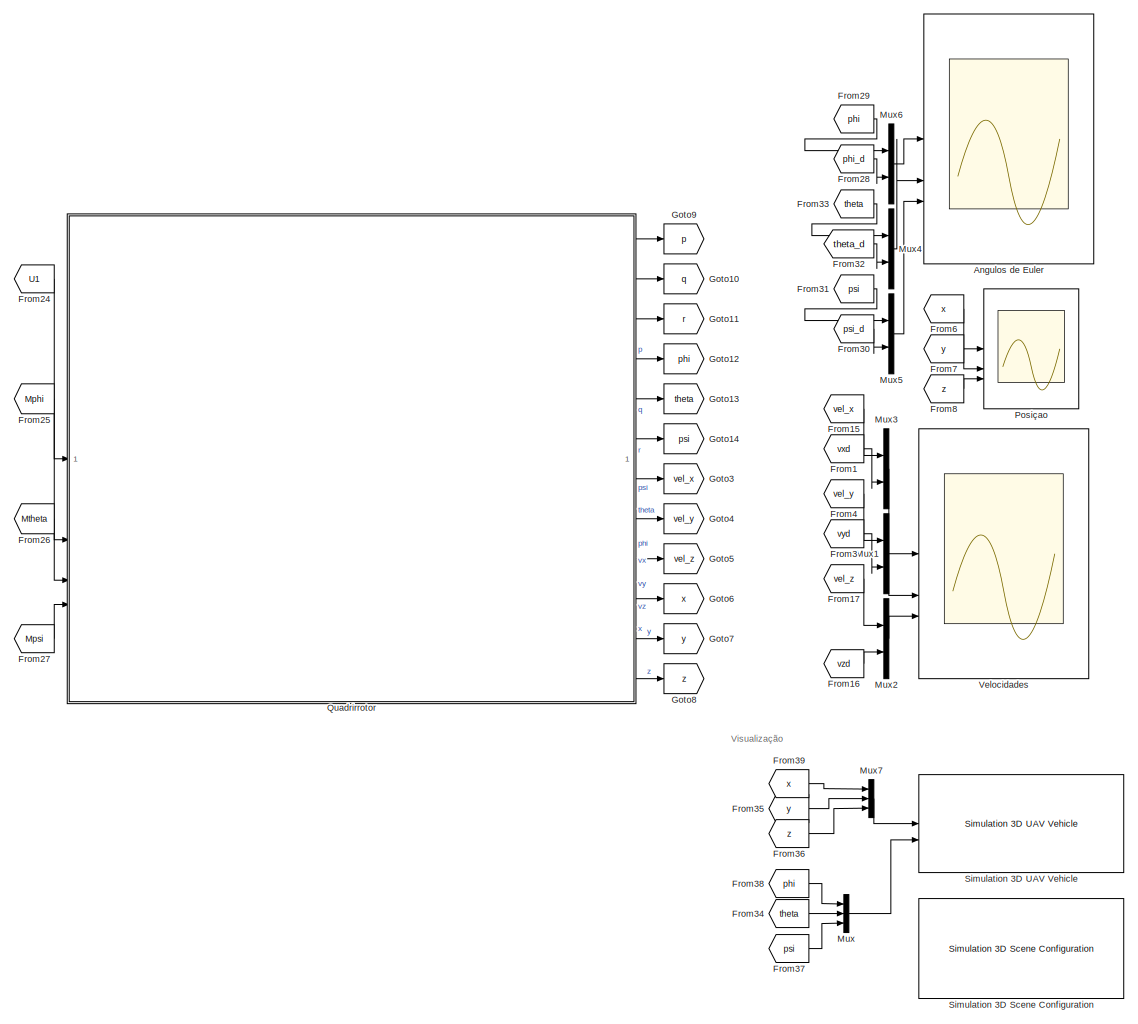
[diagram: root canvas - part 1/2, right side, full height]
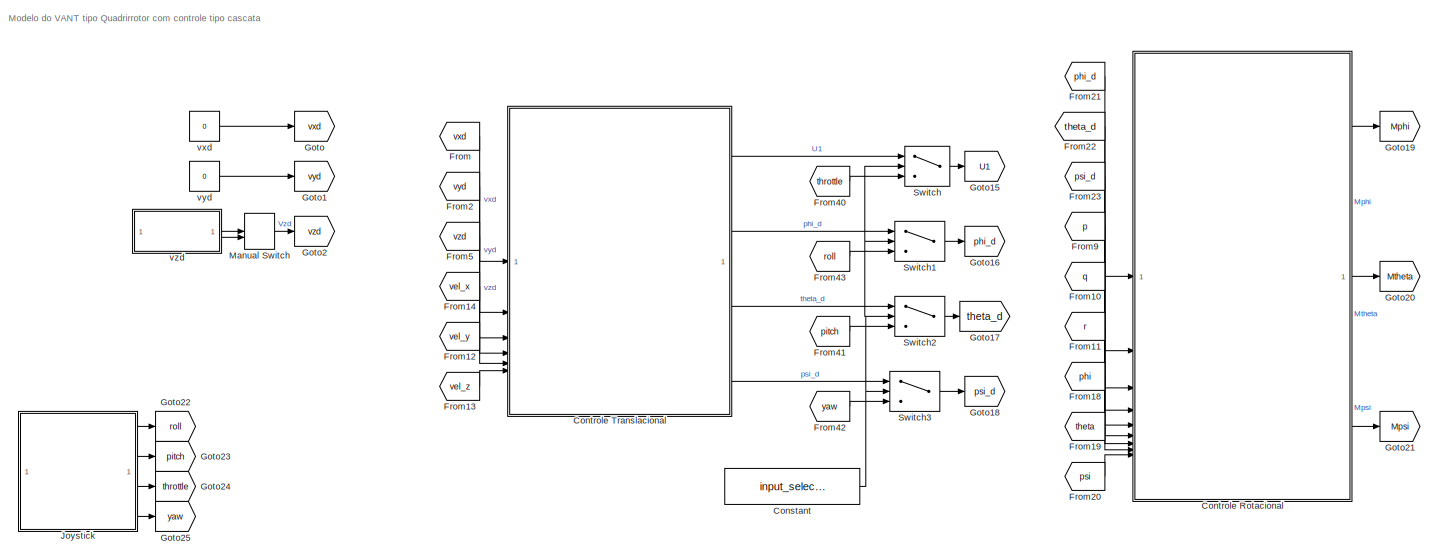
[diagram: root canvas - part 2/2, middle left region]
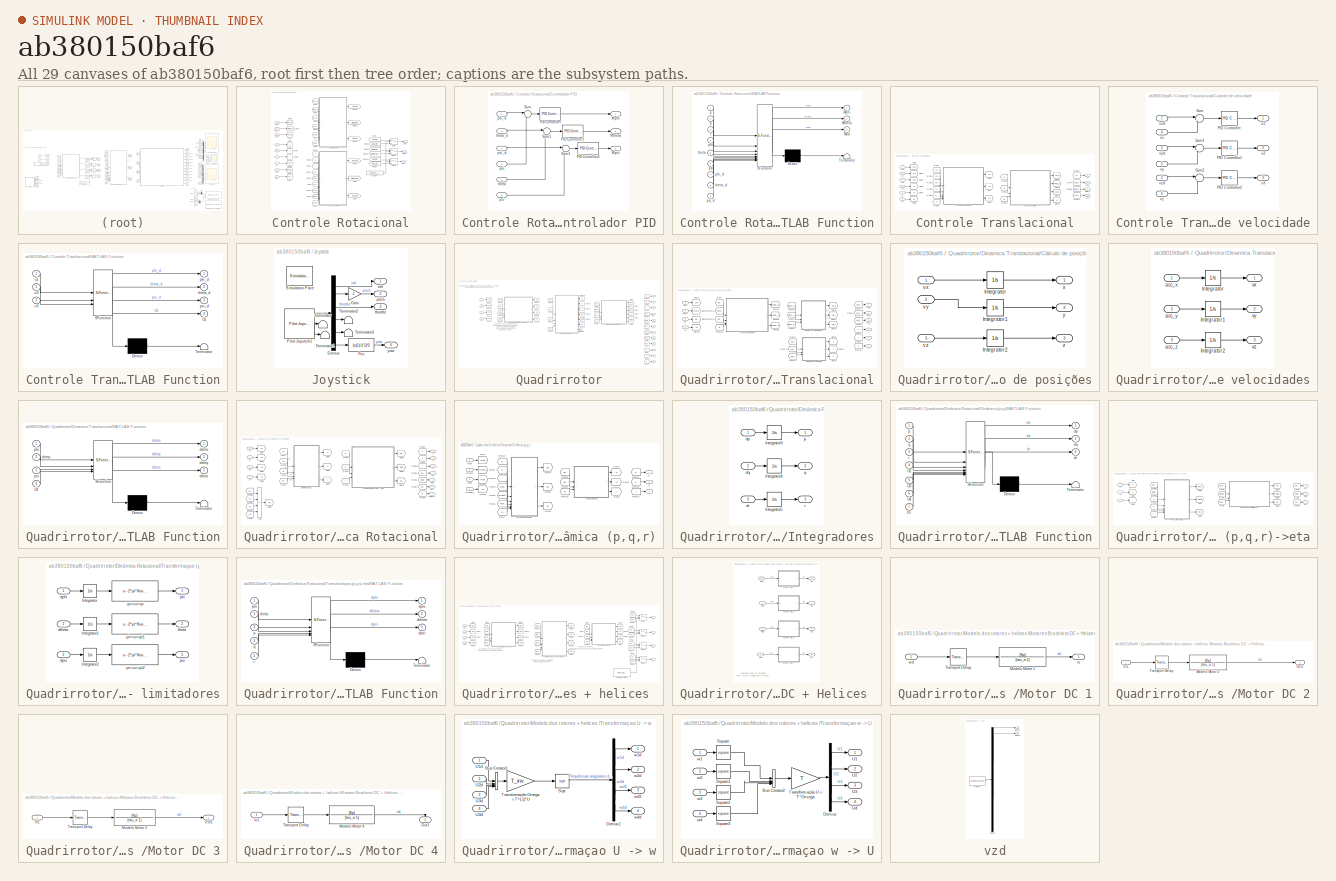
[diagram: thumbnail index - all 29 canvases of the model, root first then tree order]
MODEL slx_ab380150baf6
KIND model
CONFIG AbsTol = auto
CONFIG EnableMultiTasking = on
CONFIG FixedStep = dt
CONFIG InitFcn = modelo_naolinear_params
CONFIG MaxStep = auto
CONFIG MinStep = auto
CONFIG RelTol = 1e-3
CONFIG SampleTimeConstraint = Unconstrained
CONFIG SolverName = ode4
CONFIG StartTime = 0.0
CONFIG StopTime = T_sim
BLOCK [Scope] Angulos de Euler
  Floating = off
  NumInputPorts = 3
  ScopeSpecificationString = Simulink.scopes.TimeScopeBlockCfg('CurrentConfiguration', extmgr.ConfigurationSet(extmgr.Configuration('Core','General UI',true,'FigureColor',[0.156862745098039 0.156862745098039 0.156862745098039]),extmgr.Configuration('Core','Source UI',true),extmgr.Configuration('Sources','WiredSimulink',true,'DataLoggingVariableName','ScopeData1','DataLoggingSaveFormat','StructureWithTime','DataLoggingDecimati...<+5978ch>
BLOCK [Constant] Constant
  Value = input_selector
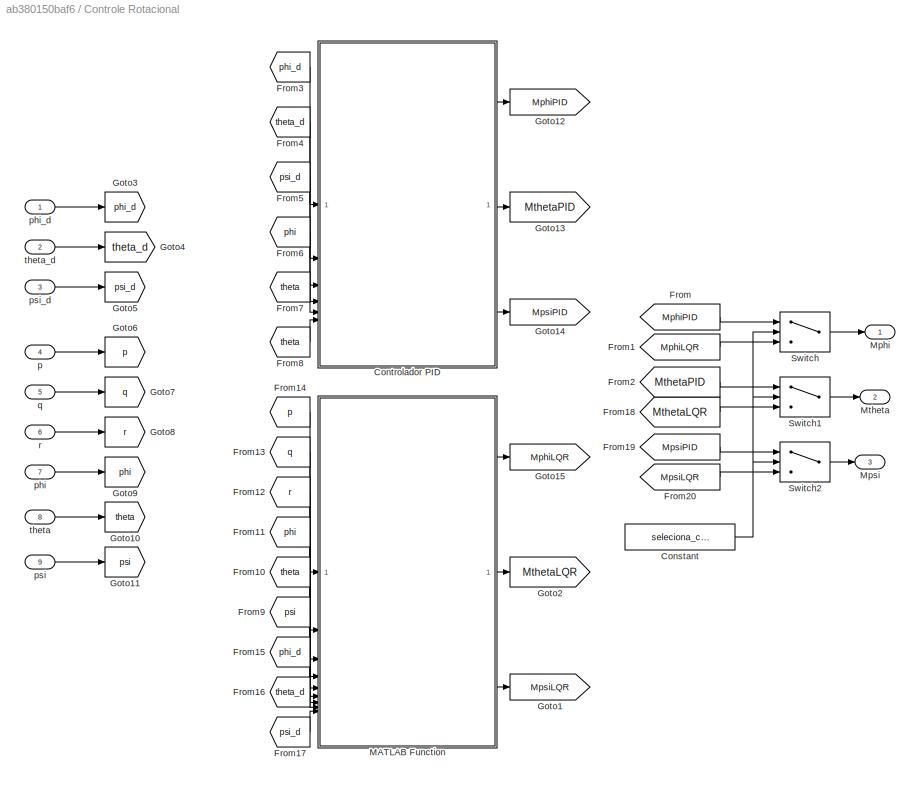
BLOCK [SubSystem] Controle Rotacional
BLOCK [Constant] Controle Rotacional/Constant
  Value = seleciona_controlador
BLOCK [SubSystem] Controle Rotacional/Controlador PID
BLOCK [Outport] Controle Rotacional/Controlador PID/Mphi
  VectorParamsAs1DForOutWhenUnconnected = off
BLOCK [Outport] Controle Rotacional/Controlador PID/Mpsi
  Port = 3
  VectorParamsAs1DForOutWhenUnconnected = off
BLOCK [Outport] Controle Rotacional/Controlador PID/Mtheta
  Port = 2
  VectorParamsAs1DForOutWhenUnconnected = off
BLOCK [Reference] Controle Rotacional/Controlador PID/PID Controller  REF=slpidlib/PID Controller
  SourceBlock = slpidlib/PID Controller
  SourceType = PID 1dof
BLOCK [Reference] Controle Rotacional/Controlador PID/PID Controller1  REF=slpidlib/PID Controller
  SourceBlock = slpidlib/PID Controller
  SourceType = PID 1dof
BLOCK [Reference] Controle Rotacional/Controlador PID/PID Controller2  REF=slpidlib/PID Controller
  SourceBlock = slpidlib/PID Controller
  SourceType = PID 1dof
BLOCK [Sum] Controle Rotacional/Controlador PID/Sum
  Inputs = |+-
BLOCK [Sum] Controle Rotacional/Controlador PID/Sum1
  Inputs = |+-
BLOCK [Sum] Controle Rotacional/Controlador PID/Sum2
  Inputs = |+-
BLOCK [Inport] Controle Rotacional/Controlador PID/phi
  Port = 4
BLOCK [Inport] Controle Rotacional/Controlador PID/phi_d
BLOCK [Inport] Controle Rotacional/Controlador PID/psi
  Port = 6
BLOCK [Inport] Controle Rotacional/Controlador PID/psi_d
  Port = 3
BLOCK [Inport] Controle Rotacional/Controlador PID/theta
  Port = 5
BLOCK [Inport] Controle Rotacional/Controlador PID/theta_d
  Port = 2
BLOCK [From] Controle Rotacional/From
  GotoTag = MphiPID
BLOCK [From] Controle Rotacional/From1
  GotoTag = MphiLQR
BLOCK [From] Controle Rotacional/From10
  GotoTag = theta
BLOCK [From] Controle Rotacional/From11
  GotoTag = phi
BLOCK [From] Controle Rotacional/From12
  GotoTag = r
BLOCK [From] Controle Rotacional/From13
  GotoTag = q
BLOCK [From] Controle Rotacional/From14
  GotoTag = p
BLOCK [From] Controle Rotacional/From15
  GotoTag = phi_d
BLOCK [From] Controle Rotacional/From16
  GotoTag = theta_d
BLOCK [From] Controle Rotacional/From17
  GotoTag = psi_d
BLOCK [From] Controle Rotacional/From18
  GotoTag = MthetaLQR
BLOCK [From] Controle Rotacional/From19
  GotoTag = MpsiPID
BLOCK [From] Controle Rotacional/From2
  GotoTag = MthetaPID
BLOCK [From] Controle Rotacional/From20
  GotoTag = MpsiLQR
BLOCK [From] Controle Rotacional/From3
  GotoTag = phi_d
BLOCK [From] Controle Rotacional/From4
  GotoTag = theta_d
BLOCK [From] Controle Rotacional/From5
  GotoTag = psi_d
BLOCK [From] Controle Rotacional/From6
  GotoTag = phi
BLOCK [From] Controle Rotacional/From7
  GotoTag = theta
BLOCK [From] Controle Rotacional/From8
  GotoTag = theta
BLOCK [From] Controle Rotacional/From9
  GotoTag = psi
BLOCK [Goto] Controle Rotacional/Goto1
  GotoTag = MpsiLQR
BLOCK [Goto] Controle Rotacional/Goto10
  GotoTag = theta
BLOCK [Goto] Controle Rotacional/Goto11
  GotoTag = psi
BLOCK [Goto] Controle Rotacional/Goto12
  GotoTag = MphiPID
BLOCK [Goto] Controle Rotacional/Goto13
  GotoTag = MthetaPID
BLOCK [Goto] Controle Rotacional/Goto14
  GotoTag = MpsiPID
BLOCK [Goto] Controle Rotacional/Goto15
  GotoTag = MphiLQR
BLOCK [Goto] Controle Rotacional/Goto2
  GotoTag = MthetaLQR
BLOCK [Goto] Controle Rotacional/Goto3
  GotoTag = phi_d
BLOCK [Goto] Controle Rotacional/Goto4
  GotoTag = theta_d
BLOCK [Goto] Controle Rotacional/Goto5
  GotoTag = psi_d
BLOCK [Goto] Controle Rotacional/Goto6
  GotoTag = p
BLOCK [Goto] Controle Rotacional/Goto7
  GotoTag = q
BLOCK [Goto] Controle Rotacional/Goto8
  GotoTag = r
BLOCK [Goto] Controle Rotacional/Goto9
  GotoTag = phi
BLOCK [SubSystem] Controle Rotacional/MATLAB Function
  ErrorFcn = Stateflow.Translate.translate
  PermitHierarchicalResolution = ExplicitOnly
  SFBlockType = MATLAB Function
  TreatAsAtomicUnit = on
BLOCK [Demux] Controle Rotacional/MATLAB Function/ Demux 
  Outputs = 1
BLOCK [S-Function] Controle Rotacional/MATLAB Function/ SFunction 
  EnableBusSupport = on
  FunctionName = sf_sfun
  Parameters = B22,G,K,R
  PortCounts = [9 4]
  SFcnIsStateOwnerBlock = off
  SFunctionDeploymentMode = off
  Tag = Stateflow S-Function 5
BLOCK [Terminator] Controle Rotacional/MATLAB Function/ Terminator 
BLOCK [Outport] Controle Rotacional/MATLAB Function/Mphi
  VectorParamsAs1DForOutWhenUnconnected = off
BLOCK [Outport] Controle Rotacional/MATLAB Function/Mpsi
  Port = 3
  VectorParamsAs1DForOutWhenUnconnected = off
BLOCK [Outport] Controle Rotacional/MATLAB Function/Mtheta
  Port = 2
  VectorParamsAs1DForOutWhenUnconnected = off
BLOCK [Inport] Controle Rotacional/MATLAB Function/p
BLOCK [Inport] Controle Rotacional/MATLAB Function/phi
  Port = 4
BLOCK [Inport] Controle Rotacional/MATLAB Function/phi_d
  Port = 7
BLOCK [Inport] Controle Rotacional/MATLAB Function/psi
  Port = 6
BLOCK [Inport] Controle Rotacional/MATLAB Function/psi_d
  Port = 9
BLOCK [Inport] Controle Rotacional/MATLAB Function/q
  Port = 2
BLOCK [Inport] Controle Rotacional/MATLAB Function/r
  Port = 3
BLOCK [Inport] Controle Rotacional/MATLAB Function/theta
  Port = 5
BLOCK [Inport] Controle Rotacional/MATLAB Function/theta_d
  Port = 8
BLOCK [Outport] Controle Rotacional/Mphi
  VectorParamsAs1DForOutWhenUnconnected = off
BLOCK [Outport] Controle Rotacional/Mpsi
  Port = 3
  VectorParamsAs1DForOutWhenUnconnected = off
BLOCK [Outport] Controle Rotacional/Mtheta
  Port = 2
  VectorParamsAs1DForOutWhenUnconnected = off
BLOCK [Switch] Controle Rotacional/Switch
  Criteria = u2 > Threshold
  InputSameDT = off
  SaturateOnIntegerOverflow = off
BLOCK [Switch] Controle Rotacional/Switch1
  Criteria = u2 > Threshold
  InputSameDT = off
  SaturateOnIntegerOverflow = off
BLOCK [Switch] Controle Rotacional/Switch2
  Criteria = u2 > Threshold
  InputSameDT = off
  SaturateOnIntegerOverflow = off
BLOCK [Inport] Controle Rotacional/p
  Port = 4
BLOCK [Inport] Controle Rotacional/phi
  Port = 7
BLOCK [Inport] Controle Rotacional/phi_d
BLOCK [Inport] Controle Rotacional/psi
  Port = 9
BLOCK [Inport] Controle Rotacional/psi_d
  Port = 3
BLOCK [Inport] Controle Rotacional/q
  Port = 5
BLOCK [Inport] Controle Rotacional/r
  Port = 6
BLOCK [Inport] Controle Rotacional/theta
  Port = 8
BLOCK [Inport] Controle Rotacional/theta_d
  Port = 2
BLOCK [SubSystem] Controle Translacional
BLOCK [SubSystem] Controle Translacional/Controle de velocidade
BLOCK [Reference] Controle Translacional/Controle de velocidade/PID Controller  REF=slpidlib/PID Controller
  SourceBlock = slpidlib/PID Controller
  SourceType = PID 1dof
BLOCK [Reference] Controle Translacional/Controle de velocidade/PID Controller1  REF=slpidlib/PID Controller
  SourceBlock = slpidlib/PID Controller
  SourceType = PID 1dof
BLOCK [Reference] Controle Translacional/Controle de velocidade/PID Controller2  REF=slpidlib/PID Controller
  SourceBlock = slpidlib/PID Controller
  SourceType = PID 1dof
BLOCK [Sum] Controle Translacional/Controle de velocidade/Sum
  Inputs = |+-
BLOCK [Sum] Controle Translacional/Controle de velocidade/Sum1
  Inputs = |+-
BLOCK [Sum] Controle Translacional/Controle de velocidade/Sum2
  Inputs = |+-
BLOCK [Outport] Controle Translacional/Controle de velocidade/u1
  VectorParamsAs1DForOutWhenUnconnected = off
BLOCK [Outport] Controle Translacional/Controle de velocidade/u2
  Port = 2
  VectorParamsAs1DForOutWhenUnconnected = off
BLOCK [Outport] Controle Translacional/Controle de velocidade/u3
  Port = 3
  VectorParamsAs1DForOutWhenUnconnected = off
BLOCK [Inport] Controle Translacional/Controle de velocidade/vx
  Port = 4
BLOCK [Inport] Controle Translacional/Controle de velocidade/vxd
BLOCK [Inport] Controle Translacional/Controle de velocidade/vy 
  Port = 5
BLOCK [Inport] Controle Translacional/Controle de velocidade/vyd
  Port = 2
BLOCK [Inport] Controle Translacional/Controle de velocidade/vz
  Port = 6
BLOCK [Inport] Controle Translacional/Controle de velocidade/vzd
  Port = 3
BLOCK [From] Controle Translacional/From
  GotoTag = phi_d
BLOCK [From] Controle Translacional/From1
  GotoTag = vxd
BLOCK [From] Controle Translacional/From10
  GotoTag = theta_d
BLOCK [From] Controle Translacional/From11
  GotoTag = psi_d
BLOCK [From] Controle Translacional/From12
  GotoTag = U1
BLOCK [From] Controle Translacional/From13
  GotoTag = u1
BLOCK [From] Controle Translacional/From14
  GotoTag = u2
BLOCK [From] Controle Translacional/From15
  GotoTag = u3
BLOCK [From] Controle Translacional/From2
  GotoTag = vyd
BLOCK [From] Controle Translacional/From3
  GotoTag = vzd
BLOCK [From] Controle Translacional/From4
  GotoTag = vx
BLOCK [From] Controle Translacional/From5
  GotoTag = vy
BLOCK [From] Controle Translacional/From6
  GotoTag = vz
BLOCK [Goto] Controle Translacional/Goto
  GotoTag = vxd
BLOCK [Goto] Controle Translacional/Goto1
  GotoTag = vyd
BLOCK [Goto] Controle Translacional/Goto13
  GotoTag = theta_d
BLOCK [Goto] Controle Translacional/Goto14
  GotoTag = psi_d
BLOCK [Goto] Controle Translacional/Goto15
  GotoTag = U1
BLOCK [Goto] Controle Translacional/Goto16
  GotoTag = phi_d
BLOCK [Goto] Controle Translacional/Goto2
  GotoTag = vzd
BLOCK [Goto] Controle Translacional/Goto3
  GotoTag = vx
BLOCK [Goto] Controle Translacional/Goto4
  GotoTag = vy
BLOCK [Goto] Controle Translacional/Goto5
  GotoTag = vz
BLOCK [Goto] Controle Translacional/Goto6
  GotoTag = u1
BLOCK [Goto] Controle Translacional/Goto7
  GotoTag = u2
BLOCK [Goto] Controle Translacional/Goto8
  GotoTag = u3
BLOCK [SubSystem] Controle Translacional/MATLAB Function
  ErrorFcn = Stateflow.Translate.translate
  PermitHierarchicalResolution = ExplicitOnly
  SFBlockType = MATLAB Function
  TreatAsAtomicUnit = on
BLOCK [Demux] Controle Translacional/MATLAB Function/ Demux 
  Outputs = 1
BLOCK [S-Function] Controle Translacional/MATLAB Function/ SFunction 
  EnableBusSupport = on
  FunctionName = sf_sfun
  Parameters = g,m
  PortCounts = [3 5]
  SFcnIsStateOwnerBlock = off
  SFunctionDeploymentMode = off
  Tag = Stateflow S-Function 4
BLOCK [Terminator] Controle Translacional/MATLAB Function/ Terminator 
BLOCK [Outport] Controle Translacional/MATLAB Function/U1
  Port = 4
  VectorParamsAs1DForOutWhenUnconnected = off
BLOCK [Outport] Controle Translacional/MATLAB Function/phi_d
  VectorParamsAs1DForOutWhenUnconnected = off
BLOCK [Outport] Controle Translacional/MATLAB Function/psi_d
  Port = 3
  VectorParamsAs1DForOutWhenUnconnected = off
BLOCK [Outport] Controle Translacional/MATLAB Function/theta_d
  Port = 2
  VectorParamsAs1DForOutWhenUnconnected = off
BLOCK [Inport] Controle Translacional/MATLAB Function/u1
BLOCK [Inport] Controle Translacional/MATLAB Function/u2
  Port = 2
BLOCK [Inport] Controle Translacional/MATLAB Function/u3
  Port = 3
BLOCK [Outport] Controle Translacional/U1
  VectorParamsAs1DForOutWhenUnconnected = off
BLOCK [Outport] Controle Translacional/phi_d
  Port = 2
  VectorParamsAs1DForOutWhenUnconnected = off
BLOCK [Outport] Controle Translacional/psi_d
  Port = 4
  VectorParamsAs1DForOutWhenUnconnected = off
BLOCK [Outport] Controle Translacional/theta_d
  Port = 3
  VectorParamsAs1DForOutWhenUnconnected = off
BLOCK [Inport] Controle Translacional/vx
  Port = 4
BLOCK [Inport] Controle Translacional/vxd
BLOCK [Inport] Controle Translacional/vy
  Port = 5
BLOCK [Inport] Controle Translacional/vyd
  Port = 2
BLOCK [Inport] Controle Translacional/vz
  Port = 6
BLOCK [Inport] Controle Translacional/vzd
  Port = 3
BLOCK [From] From
  GotoTag = vxd
BLOCK [From] From1
  GotoTag = vxd
BLOCK [From] From10
  GotoTag = q
BLOCK [From] From11
  GotoTag = r
BLOCK [From] From12
  GotoTag = vel_y
BLOCK [From] From13
  GotoTag = vel_z
BLOCK [From] From14
  GotoTag = vel_x
BLOCK [From] From15
  GotoTag = vel_x
BLOCK [From] From16
  GotoTag = vzd
BLOCK [From] From17
  GotoTag = vel_z
BLOCK [From] From18
  GotoTag = phi
BLOCK [From] From19
  GotoTag = theta
BLOCK [From] From2
  GotoTag = vyd
BLOCK [From] From20
  GotoTag = psi
BLOCK [From] From21
  GotoTag = phi_d
BLOCK [From] From22
  GotoTag = theta_d
BLOCK [From] From23
  GotoTag = psi_d
BLOCK [From] From24
  GotoTag = U1
BLOCK [From] From25
  GotoTag = Mphi
BLOCK [From] From26
  GotoTag = Mtheta
BLOCK [From] From27
  GotoTag = Mpsi
BLOCK [From] From28
  GotoTag = phi_d
BLOCK [From] From29
  GotoTag = phi
BLOCK [From] From3
  GotoTag = vyd
BLOCK [From] From30
  GotoTag = psi_d
BLOCK [From] From31
  GotoTag = psi
BLOCK [From] From32
  GotoTag = theta_d
BLOCK [From] From33
  GotoTag = theta
BLOCK [From] From34
  GotoTag = theta
BLOCK [From] From35
  GotoTag = y
BLOCK [From] From36
  GotoTag = z
BLOCK [From] From37
  GotoTag = psi
BLOCK [From] From38
  GotoTag = phi
BLOCK [From] From39
  GotoTag = x
BLOCK [From] From4
  GotoTag = vel_y
BLOCK [From] From40
  GotoTag = throttle
BLOCK [From] From41
  GotoTag = pitch
BLOCK [From] From42
  GotoTag = yaw
BLOCK [From] From43
  GotoTag = roll
BLOCK [From] From5
  GotoTag = vzd
BLOCK [From] From6
  GotoTag = x
BLOCK [From] From7
  GotoTag = y
BLOCK [From] From8
  GotoTag = z
BLOCK [From] From9
  GotoTag = p
BLOCK [Goto] Goto
  GotoTag = vxd
BLOCK [Goto] Goto1
  GotoTag = vyd
BLOCK [Goto] Goto10
  GotoTag = q
BLOCK [Goto] Goto11
  GotoTag = r
BLOCK [Goto] Goto12
  GotoTag = phi
BLOCK [Goto] Goto13
  GotoTag = theta
BLOCK [Goto] Goto14
  GotoTag = psi
BLOCK [Goto] Goto15
  GotoTag = U1
BLOCK [Goto] Goto16
  GotoTag = phi_d
BLOCK [Goto] Goto17
  GotoTag = theta_d
BLOCK [Goto] Goto18
  GotoTag = psi_d
BLOCK [Goto] Goto19
  GotoTag = Mphi
BLOCK [Goto] Goto2
  GotoTag = vzd
BLOCK [Goto] Goto20
  GotoTag = Mtheta
BLOCK [Goto] Goto21
  GotoTag = Mpsi
BLOCK [Goto] Goto22
  GotoTag = roll
BLOCK [Goto] Goto23
  GotoTag = pitch
BLOCK [Goto] Goto24
  GotoTag = throttle
BLOCK [Goto] Goto25
  GotoTag = yaw
BLOCK [Goto] Goto3
  GotoTag = vel_x
BLOCK [Goto] Goto4
  GotoTag = vel_y
BLOCK [Goto] Goto5
  GotoTag = vel_z
BLOCK [Goto] Goto6
  GotoTag = x
BLOCK [Goto] Goto7
  GotoTag = y
BLOCK [Goto] Goto8
  GotoTag = z
BLOCK [Goto] Goto9
  GotoTag = p
BLOCK [SubSystem] Joystick
BLOCK [Demux] Joystick/Demux
  Outputs = 6
BLOCK [Fcn] Joystick/Fcn
  Expr = (u(1)-0.5)*2
BLOCK [Gain] Joystick/Gain
  Gain = -1
BLOCK [Reference] Joystick/Pilot Joystick1  REF=aerolibanimutils/Pilot Joystick
  SourceBlock = aerolibanimutils/Pilot Joystick
  SourceType = PilotJoystick
BLOCK [Reference] Joystick/Simulation Pace  REF=aerolibanimutils/Simulation Pace
  AttributesFormatString = %<SleepMode>\n%<SimulationPace> sec/sec
  SourceBlock = aerolibanimutils/Simulation Pace
  SourceType = Simulation Pace
BLOCK [Terminator] Joystick/Terminator
BLOCK [Terminator] Joystick/Terminator1
BLOCK [Terminator] Joystick/Terminator2
BLOCK [Terminator] Joystick/Terminator3
BLOCK [Outport] Joystick/pitch
  Port = 2
BLOCK [Outport] Joystick/roll
BLOCK [Outport] Joystick/throttle
  Port = 3
BLOCK [Outport] Joystick/yaw
  Port = 4
BLOCK [ManualSwitch] Manual Switch
BLOCK [Mux] Mux
  DisplayOption = bar
  Inputs = 3
BLOCK [Mux] Mux1
  DisplayOption = bar
  Inputs = 2
BLOCK [Mux] Mux2
  DisplayOption = bar
  Inputs = 2
BLOCK [Mux] Mux3
  DisplayOption = bar
  Inputs = 2
BLOCK [Mux] Mux4
  DisplayOption = bar
  Inputs = 2
BLOCK [Mux] Mux5
  DisplayOption = bar
  Inputs = 2
BLOCK [Mux] Mux6
  DisplayOption = bar
  Inputs = 2
BLOCK [Mux] Mux7
  DisplayOption = bar
  Inputs = 3
BLOCK [Scope] Posiçao
  Floating = off
  NumInputPorts = 3
  ScopeSpecificationString = Simulink.scopes.TimeScopeBlockCfg('CurrentConfiguration', extmgr.ConfigurationSet(extmgr.Configuration('Core','General UI',true,'FigureColor',[0.156862745098039 0.156862745098039 0.156862745098039]),extmgr.Configuration('Core','Source UI',true),extmgr.Configuration('Sources','WiredSimulink',true,'DataLoggingVariableName','ScopeData2','DataLoggingSaveFormat','StructureWithTime','DataLoggingDecimati...<+5192ch>
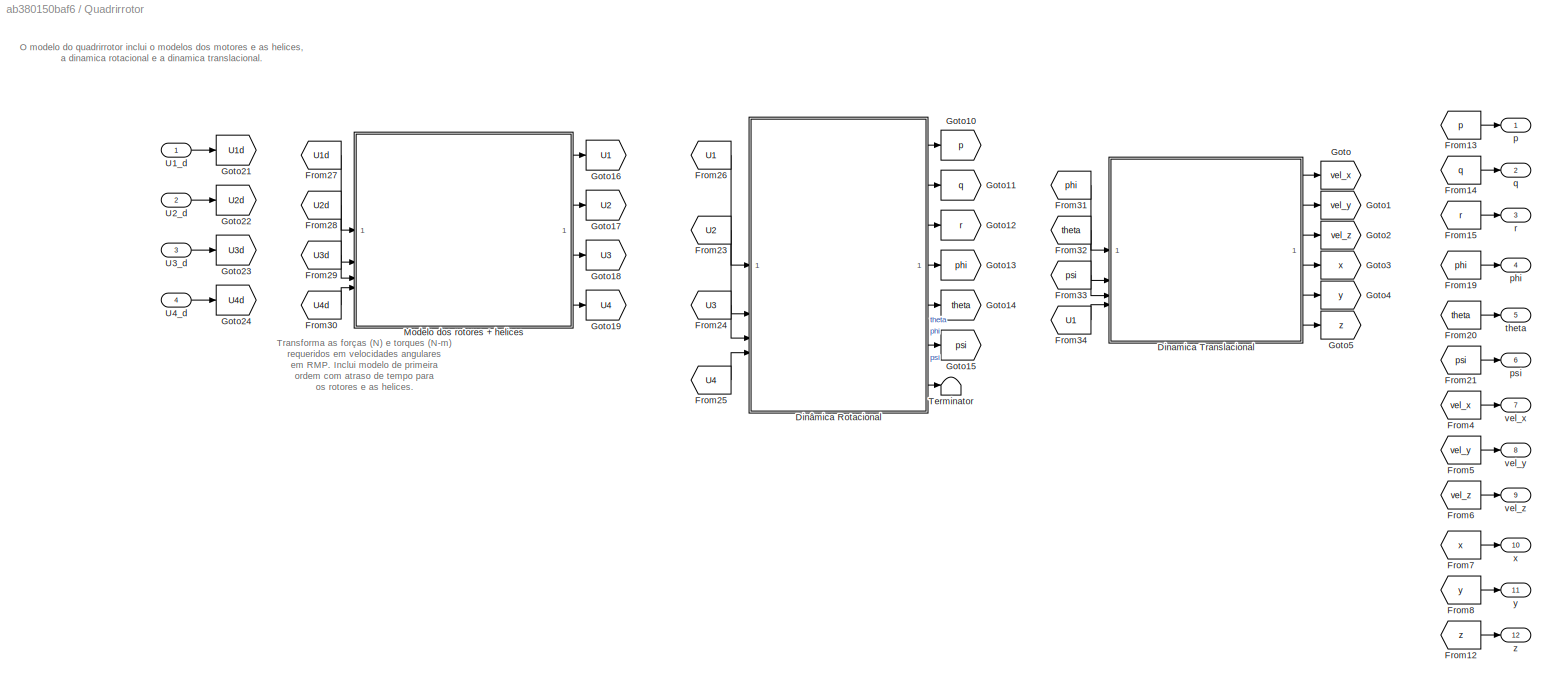
BLOCK [SubSystem] Quadrirrotor
  UserDataPersistent = on
BLOCK [SubSystem] Quadrirrotor/Dinamica Translacional
BLOCK [SubSystem] Quadrirrotor/Dinamica Translacional/Cálculo de posições
BLOCK [Integrator] Quadrirrotor/Dinamica Translacional/Cálculo de posições/Integrator
  InitialCondition = x0
BLOCK [Integrator] Quadrirrotor/Dinamica Translacional/Cálculo de posições/Integrator1
  InitialCondition = y0
BLOCK [Integrator] Quadrirrotor/Dinamica Translacional/Cálculo de posições/Integrator2
  InitialCondition = z0
  LimitOutput = on
  LowerSaturationLimit = 0
BLOCK [Inport] Quadrirrotor/Dinamica Translacional/Cálculo de posições/vx
BLOCK [Inport] Quadrirrotor/Dinamica Translacional/Cálculo de posições/vy
  Port = 2
BLOCK [Inport] Quadrirrotor/Dinamica Translacional/Cálculo de posições/vz
  Port = 3
BLOCK [Outport] Quadrirrotor/Dinamica Translacional/Cálculo de posições/x
  VectorParamsAs1DForOutWhenUnconnected = off
BLOCK [Outport] Quadrirrotor/Dinamica Translacional/Cálculo de posições/y
  Port = 2
  VectorParamsAs1DForOutWhenUnconnected = off
BLOCK [Outport] Quadrirrotor/Dinamica Translacional/Cálculo de posições/z
  Port = 3
  VectorParamsAs1DForOutWhenUnconnected = off
BLOCK [SubSystem] Quadrirrotor/Dinamica Translacional/Cálculo de velocidades
BLOCK [Integrator] Quadrirrotor/Dinamica Translacional/Cálculo de velocidades/Integrator
  InitialCondition = vx0
  ZeroCross = off
BLOCK [Integrator] Quadrirrotor/Dinamica Translacional/Cálculo de velocidades/Integrator1
  InitialCondition = vy0
  ZeroCross = off
BLOCK [Integrator] Quadrirrotor/Dinamica Translacional/Cálculo de velocidades/Integrator2
  InitialCondition = vz0
  ZeroCross = off
BLOCK [Inport] Quadrirrotor/Dinamica Translacional/Cálculo de velocidades/acc_x
BLOCK [Inport] Quadrirrotor/Dinamica Translacional/Cálculo de velocidades/acc_y
  Port = 2
BLOCK [Inport] Quadrirrotor/Dinamica Translacional/Cálculo de velocidades/acc_z
  Port = 3
BLOCK [Outport] Quadrirrotor/Dinamica Translacional/Cálculo de velocidades/vx
  VectorParamsAs1DForOutWhenUnconnected = off
BLOCK [Outport] Quadrirrotor/Dinamica Translacional/Cálculo de velocidades/vy
  Port = 2
  VectorParamsAs1DForOutWhenUnconnected = off
BLOCK [Outport] Quadrirrotor/Dinamica Translacional/Cálculo de velocidades/vz
  Port = 3
  VectorParamsAs1DForOutWhenUnconnected = off
BLOCK [From] Quadrirrotor/Dinamica Translacional/From
  GotoTag = phi
BLOCK [From] Quadrirrotor/Dinamica Translacional/From1
  GotoTag = ddot_yi
BLOCK [From] Quadrirrotor/Dinamica Translacional/From10
  GotoTag = vel_y
BLOCK [From] Quadrirrotor/Dinamica Translacional/From11
  GotoTag = vel_z
BLOCK [From] Quadrirrotor/Dinamica Translacional/From12
  GotoTag = z
BLOCK [From] Quadrirrotor/Dinamica Translacional/From13
  GotoTag = theta
BLOCK [From] Quadrirrotor/Dinamica Translacional/From14
  GotoTag = psi
BLOCK [From] Quadrirrotor/Dinamica Translacional/From15
  GotoTag = U1
BLOCK [From] Quadrirrotor/Dinamica Translacional/From2
  GotoTag = ddot_zi
BLOCK [From] Quadrirrotor/Dinamica Translacional/From3
  GotoTag = ddot_xi
BLOCK [From] Quadrirrotor/Dinamica Translacional/From4
  GotoTag = vel_x
BLOCK [From] Quadrirrotor/Dinamica Translacional/From5
  GotoTag = vel_y
BLOCK [From] Quadrirrotor/Dinamica Translacional/From6
  GotoTag = vel_z
BLOCK [From] Quadrirrotor/Dinamica Translacional/From7
  GotoTag = x
BLOCK [From] Quadrirrotor/Dinamica Translacional/From8
  GotoTag = y
BLOCK [From] Quadrirrotor/Dinamica Translacional/From9
  GotoTag = vel_x
BLOCK [Goto] Quadrirrotor/Dinamica Translacional/Goto1
  GotoTag = phi
BLOCK [Goto] Quadrirrotor/Dinamica Translacional/Goto10
  GotoTag = U1
BLOCK [Goto] Quadrirrotor/Dinamica Translacional/Goto2
  GotoTag = theta
BLOCK [Goto] Quadrirrotor/Dinamica Translacional/Goto20
  GotoTag = ddot_xi
BLOCK [Goto] Quadrirrotor/Dinamica Translacional/Goto25
  GotoTag = ddot_yi
BLOCK [Goto] Quadrirrotor/Dinamica Translacional/Goto26
  GotoTag = ddot_zi
BLOCK [Goto] Quadrirrotor/Dinamica Translacional/Goto3
  GotoTag = x
BLOCK [Goto] Quadrirrotor/Dinamica Translacional/Goto4
  GotoTag = y
BLOCK [Goto] Quadrirrotor/Dinamica Translacional/Goto5
  GotoTag = z
BLOCK [Goto] Quadrirrotor/Dinamica Translacional/Goto6
  GotoTag = vel_x
BLOCK [Goto] Quadrirrotor/Dinamica Translacional/Goto7
  GotoTag = vel_y
BLOCK [Goto] Quadrirrotor/Dinamica Translacional/Goto8
  GotoTag = vel_z
BLOCK [Goto] Quadrirrotor/Dinamica Translacional/Goto9
  GotoTag = psi
BLOCK [SubSystem] Quadrirrotor/Dinamica Translacional/MATLAB Function
  ErrorFcn = Stateflow.Translate.translate
  PermitHierarchicalResolution = ExplicitOnly
  SFBlockType = MATLAB Function
  TreatAsAtomicUnit = on
BLOCK [Demux] Quadrirrotor/Dinamica Translacional/MATLAB Function/ Demux 
  Outputs = 1
BLOCK [S-Function] Quadrirrotor/Dinamica Translacional/MATLAB Function/ SFunction 
  EnableBusSupport = on
  FunctionName = sf_sfun
  Parameters = g,m
  PortCounts = [4 4]
  SFcnIsStateOwnerBlock = off
  SFunctionDeploymentMode = off
  Tag = Stateflow S-Function 3
BLOCK [Terminator] Quadrirrotor/Dinamica Translacional/MATLAB Function/ Terminator 
BLOCK [Inport] Quadrirrotor/Dinamica Translacional/MATLAB Function/U1
  Port = 4
BLOCK [Outport] Quadrirrotor/Dinamica Translacional/MATLAB Function/ddotx
  VectorParamsAs1DForOutWhenUnconnected = off
BLOCK [Outport] Quadrirrotor/Dinamica Translacional/MATLAB Function/ddoty
  Port = 2
  VectorParamsAs1DForOutWhenUnconnected = off
BLOCK [Outport] Quadrirrotor/Dinamica Translacional/MATLAB Function/ddotz
  Port = 3
  VectorParamsAs1DForOutWhenUnconnected = off
BLOCK [Inport] Quadrirrotor/Dinamica Translacional/MATLAB Function/phi
BLOCK [Inport] Quadrirrotor/Dinamica Translacional/MATLAB Function/psi
  Port = 3
BLOCK [Inport] Quadrirrotor/Dinamica Translacional/MATLAB Function/theta
  Port = 2
BLOCK [Inport] Quadrirrotor/Dinamica Translacional/U1
  Port = 4
BLOCK [Inport] Quadrirrotor/Dinamica Translacional/phi
BLOCK [Inport] Quadrirrotor/Dinamica Translacional/psi
  Port = 3
BLOCK [Inport] Quadrirrotor/Dinamica Translacional/theta
  Port = 2
BLOCK [Outport] Quadrirrotor/Dinamica Translacional/vel_x
  VectorParamsAs1DForOutWhenUnconnected = off
BLOCK [Outport] Quadrirrotor/Dinamica Translacional/vel_y
  Port = 2
  VectorParamsAs1DForOutWhenUnconnected = off
BLOCK [Outport] Quadrirrotor/Dinamica Translacional/vel_z
  Port = 3
  VectorParamsAs1DForOutWhenUnconnected = off
BLOCK [Outport] Quadrirrotor/Dinamica Translacional/x
  Port = 4
  VectorParamsAs1DForOutWhenUnconnected = off
BLOCK [Outport] Quadrirrotor/Dinamica Translacional/y
  Port = 5
  VectorParamsAs1DForOutWhenUnconnected = off
BLOCK [Outport] Quadrirrotor/Dinamica Translacional/z
  Port = 6
  VectorParamsAs1DForOutWhenUnconnected = off
BLOCK [SubSystem] Quadrirrotor/Dinâmica Rotacional
BLOCK [Sum] Quadrirrotor/Dinâmica Rotacional/Add
  IconShape = rectangular
  Inputs = +-+-
BLOCK [SubSystem] Quadrirrotor/Dinâmica Rotacional/Dinâmica (p,q,r)
BLOCK [From] Quadrirrotor/Dinâmica Rotacional/Dinâmica (p,q,r)/From10
  GotoTag = dr
BLOCK [From] Quadrirrotor/Dinâmica Rotacional/Dinâmica (p,q,r)/From11
  GotoTag = p
BLOCK [From] Quadrirrotor/Dinâmica Rotacional/Dinâmica (p,q,r)/From12
  GotoTag = q
BLOCK [From] Quadrirrotor/Dinâmica Rotacional/Dinâmica (p,q,r)/From13
  GotoTag = r
BLOCK [From] Quadrirrotor/Dinâmica Rotacional/Dinâmica (p,q,r)/From17
  GotoTag = p
BLOCK [From] Quadrirrotor/Dinâmica Rotacional/Dinâmica (p,q,r)/From18
  GotoTag = q
BLOCK [From] Quadrirrotor/Dinâmica Rotacional/Dinâmica (p,q,r)/From19
  GotoTag = r
BLOCK [From] Quadrirrotor/Dinâmica Rotacional/Dinâmica (p,q,r)/From4
  GotoTag = Mphi
BLOCK [From] Quadrirrotor/Dinâmica Rotacional/Dinâmica (p,q,r)/From5
  GotoTag = Mtheta
BLOCK [From] Quadrirrotor/Dinâmica Rotacional/Dinâmica (p,q,r)/From6
  GotoTag = Mpsi
BLOCK [From] Quadrirrotor/Dinâmica Rotacional/Dinâmica (p,q,r)/From7
  GotoTag = Or
BLOCK [From] Quadrirrotor/Dinâmica Rotacional/Dinâmica (p,q,r)/From8
  GotoTag = dp
BLOCK [From] Quadrirrotor/Dinâmica Rotacional/Dinâmica (p,q,r)/From9
  GotoTag = dq
BLOCK [Goto] Quadrirrotor/Dinâmica Rotacional/Dinâmica (p,q,r)/Goto
  GotoTag = Mphi
BLOCK [Goto] Quadrirrotor/Dinâmica Rotacional/Dinâmica (p,q,r)/Goto1
  GotoTag = Mtheta
BLOCK [Goto] Quadrirrotor/Dinâmica Rotacional/Dinâmica (p,q,r)/Goto2
  GotoTag = Mpsi
BLOCK [Goto] Quadrirrotor/Dinâmica Rotacional/Dinâmica (p,q,r)/Goto3
  GotoTag = Or
BLOCK [Goto] Quadrirrotor/Dinâmica Rotacional/Dinâmica (p,q,r)/Goto4
  GotoTag = dp
BLOCK [Goto] Quadrirrotor/Dinâmica Rotacional/Dinâmica (p,q,r)/Goto5
  GotoTag = dq
BLOCK [Goto] Quadrirrotor/Dinâmica Rotacional/Dinâmica (p,q,r)/Goto6
  GotoTag = dr
BLOCK [Goto] Quadrirrotor/Dinâmica Rotacional/Dinâmica (p,q,r)/Goto7
  GotoTag = p
BLOCK [Goto] Quadrirrotor/Dinâmica Rotacional/Dinâmica (p,q,r)/Goto8
  GotoTag = q
BLOCK [Goto] Quadrirrotor/Dinâmica Rotacional/Dinâmica (p,q,r)/Goto9
  GotoTag = r
BLOCK [SubSystem] Quadrirrotor/Dinâmica Rotacional/Dinâmica (p,q,r)/Integradores
BLOCK [Integrator] Quadrirrotor/Dinâmica Rotacional/Dinâmica (p,q,r)/Integradores/Integrator3
  InitialCondition = p0
BLOCK [Integrator] Quadrirrotor/Dinâmica Rotacional/Dinâmica (p,q,r)/Integradores/Integrator4
  InitialCondition = q0
BLOCK [Integrator] Quadrirrotor/Dinâmica Rotacional/Dinâmica (p,q,r)/Integradores/Integrator5
  InitialCondition = r0
BLOCK [Inport] Quadrirrotor/Dinâmica Rotacional/Dinâmica (p,q,r)/Integradores/dp
BLOCK [Inport] Quadrirrotor/Dinâmica Rotacional/Dinâmica (p,q,r)/Integradores/dq
  Port = 2
BLOCK [Inport] Quadrirrotor/Dinâmica Rotacional/Dinâmica (p,q,r)/Integradores/dr
  Port = 3
BLOCK [Outport] Quadrirrotor/Dinâmica Rotacional/Dinâmica (p,q,r)/Integradores/p
  VectorParamsAs1DForOutWhenUnconnected = off
BLOCK [Outport] Quadrirrotor/Dinâmica Rotacional/Dinâmica (p,q,r)/Integradores/q
  Port = 2
  VectorParamsAs1DForOutWhenUnconnected = off
BLOCK [Outport] Quadrirrotor/Dinâmica Rotacional/Dinâmica (p,q,r)/Integradores/r
  Port = 3
  VectorParamsAs1DForOutWhenUnconnected = off
BLOCK [SubSystem] Quadrirrotor/Dinâmica Rotacional/Dinâmica (p,q,r)/MATLAB Function
  ErrorFcn = Stateflow.Translate.translate
  PermitHierarchicalResolution = ExplicitOnly
  SFBlockType = MATLAB Function
  TreatAsAtomicUnit = on
BLOCK [Demux] Quadrirrotor/Dinâmica Rotacional/Dinâmica (p,q,r)/MATLAB Function/ Demux 
  Outputs = 1
BLOCK [S-Function] Quadrirrotor/Dinâmica Rotacional/Dinâmica (p,q,r)/MATLAB Function/ SFunction 
  EnableBusSupport = on
  FunctionName = sf_sfun
  Parameters = Ir,Ixx,Iyy,Izz
  PortCounts = [7 4]
  SFcnIsStateOwnerBlock = off
  SFunctionDeploymentMode = off
  Tag = Stateflow S-Function 2
BLOCK [Terminator] Quadrirrotor/Dinâmica Rotacional/Dinâmica (p,q,r)/MATLAB Function/ Terminator 
BLOCK [Inport] Quadrirrotor/Dinâmica Rotacional/Dinâmica (p,q,r)/MATLAB Function/Or
  Port = 7
BLOCK [Inport] Quadrirrotor/Dinâmica Rotacional/Dinâmica (p,q,r)/MATLAB Function/U2
  Port = 4
BLOCK [Inport] Quadrirrotor/Dinâmica Rotacional/Dinâmica (p,q,r)/MATLAB Function/U3
  Port = 5
BLOCK [Inport] Quadrirrotor/Dinâmica Rotacional/Dinâmica (p,q,r)/MATLAB Function/U4
  Port = 6
BLOCK [Outport] Quadrirrotor/Dinâmica Rotacional/Dinâmica (p,q,r)/MATLAB Function/dp
  VectorParamsAs1DForOutWhenUnconnected = off
BLOCK [Outport] Quadrirrotor/Dinâmica Rotacional/Dinâmica (p,q,r)/MATLAB Function/dq
  Port = 2
  VectorParamsAs1DForOutWhenUnconnected = off
BLOCK [Outport] Quadrirrotor/Dinâmica Rotacional/Dinâmica (p,q,r)/MATLAB Function/dr
  Port = 3
  VectorParamsAs1DForOutWhenUnconnected = off
BLOCK [Inport] Quadrirrotor/Dinâmica Rotacional/Dinâmica (p,q,r)/MATLAB Function/p
BLOCK [Inport] Quadrirrotor/Dinâmica Rotacional/Dinâmica (p,q,r)/MATLAB Function/q
  Port = 2
BLOCK [Inport] Quadrirrotor/Dinâmica Rotacional/Dinâmica (p,q,r)/MATLAB Function/r
  Port = 3
BLOCK [Inport] Quadrirrotor/Dinâmica Rotacional/Dinâmica (p,q,r)/Mphi
BLOCK [Inport] Quadrirrotor/Dinâmica Rotacional/Dinâmica (p,q,r)/Mpsi
  Port = 3
BLOCK [Inport] Quadrirrotor/Dinâmica Rotacional/Dinâmica (p,q,r)/Mtheta
  Port = 2
BLOCK [Inport] Quadrirrotor/Dinâmica Rotacional/Dinâmica (p,q,r)/Omega_r
  Port = 4
BLOCK [Outport] Quadrirrotor/Dinâmica Rotacional/Dinâmica (p,q,r)/p
  VectorParamsAs1DForOutWhenUnconnected = off
BLOCK [Outport] Quadrirrotor/Dinâmica Rotacional/Dinâmica (p,q,r)/q
  Port = 2
  VectorParamsAs1DForOutWhenUnconnected = off
BLOCK [Outport] Quadrirrotor/Dinâmica Rotacional/Dinâmica (p,q,r)/r
  Port = 3
  VectorParamsAs1DForOutWhenUnconnected = off
BLOCK [From] Quadrirrotor/Dinâmica Rotacional/From
  GotoTag = U2
BLOCK [From] Quadrirrotor/Dinâmica Rotacional/From1
  GotoTag = U3
BLOCK [From] Quadrirrotor/Dinâmica Rotacional/From10
  GotoTag = q
BLOCK [From] Quadrirrotor/Dinâmica Rotacional/From11
  GotoTag = r
BLOCK [From] Quadrirrotor/Dinâmica Rotacional/From12
  GotoTag = q
BLOCK [From] Quadrirrotor/Dinâmica Rotacional/From13
  GotoTag = r
BLOCK [From] Quadrirrotor/Dinâmica Rotacional/From14
  GotoTag = p
BLOCK [From] Quadrirrotor/Dinâmica Rotacional/From15
  GotoTag = phi
BLOCK [From] Quadrirrotor/Dinâmica Rotacional/From16
  GotoTag = theta
BLOCK [From] Quadrirrotor/Dinâmica Rotacional/From17
  GotoTag = psi
BLOCK [From] Quadrirrotor/Dinâmica Rotacional/From2
  GotoTag = U4
BLOCK [From] Quadrirrotor/Dinâmica Rotacional/From3
  GotoTag = U1
BLOCK [From] Quadrirrotor/Dinâmica Rotacional/From4
  GotoTag = U2
BLOCK [From] Quadrirrotor/Dinâmica Rotacional/From5
  GotoTag = U3
BLOCK [From] Quadrirrotor/Dinâmica Rotacional/From6
  GotoTag = U4
BLOCK [From] Quadrirrotor/Dinâmica Rotacional/From7
  GotoTag = Or
BLOCK [From] Quadrirrotor/Dinâmica Rotacional/From8
  GotoTag = Or
BLOCK [From] Quadrirrotor/Dinâmica Rotacional/From9
  GotoTag = p
BLOCK [Goto] Quadrirrotor/Dinâmica Rotacional/Goto
  GotoTag = U1
BLOCK [Goto] Quadrirrotor/Dinâmica Rotacional/Goto1
  GotoTag = U2
BLOCK [Goto] Quadrirrotor/Dinâmica Rotacional/Goto10
  GotoTag = psi
BLOCK [Goto] Quadrirrotor/Dinâmica Rotacional/Goto2
  GotoTag = U3
BLOCK [Goto] Quadrirrotor/Dinâmica Rotacional/Goto3
  GotoTag = U4
BLOCK [Goto] Quadrirrotor/Dinâmica Rotacional/Goto4
  GotoTag = Or
BLOCK [Goto] Quadrirrotor/Dinâmica Rotacional/Goto5
  GotoTag = p
BLOCK [Goto] Quadrirrotor/Dinâmica Rotacional/Goto6
  GotoTag = q
BLOCK [Goto] Quadrirrotor/Dinâmica Rotacional/Goto7
  GotoTag = r
BLOCK [Goto] Quadrirrotor/Dinâmica Rotacional/Goto8
  GotoTag = phi
BLOCK [Goto] Quadrirrotor/Dinâmica Rotacional/Goto9
  GotoTag = theta
BLOCK [Outport] Quadrirrotor/Dinâmica Rotacional/Omega_r
  Port = 7
  VectorParamsAs1DForOutWhenUnconnected = off
BLOCK [SubSystem] Quadrirrotor/Dinâmica Rotacional/Transformaçao (p,q,r)->eta
BLOCK [From] Quadrirrotor/Dinâmica Rotacional/Transformaçao (p,q,r)->eta/From
  GotoTag = q
BLOCK [From] Quadrirrotor/Dinâmica Rotacional/Transformaçao (p,q,r)->eta/From1
  GotoTag = r
BLOCK [From] Quadrirrotor/Dinâmica Rotacional/Transformaçao (p,q,r)->eta/From10
  GotoTag = psi
BLOCK [From] Quadrirrotor/Dinâmica Rotacional/Transformaçao (p,q,r)->eta/From2
  GotoTag = p
BLOCK [From] Quadrirrotor/Dinâmica Rotacional/Transformaçao (p,q,r)->eta/From3
  GotoTag = dphi
BLOCK [From] Quadrirrotor/Dinâmica Rotacional/Transformaçao (p,q,r)->eta/From4
  GotoTag = dtheta
BLOCK [From] Quadrirrotor/Dinâmica Rotacional/Transformaçao (p,q,r)->eta/From5
  GotoTag = dpsi
BLOCK [From] Quadrirrotor/Dinâmica Rotacional/Transformaçao (p,q,r)->eta/From6
  GotoTag = phi
BLOCK [From] Quadrirrotor/Dinâmica Rotacional/Transformaçao (p,q,r)->eta/From7
  GotoTag = theta
BLOCK [From] Quadrirrotor/Dinâmica Rotacional/Transformaçao (p,q,r)->eta/From8
  GotoTag = phi
BLOCK [From] Quadrirrotor/Dinâmica Rotacional/Transformaçao (p,q,r)->eta/From9
  GotoTag = theta
BLOCK [Goto] Quadrirrotor/Dinâmica Rotacional/Transformaçao (p,q,r)->eta/Goto
  GotoTag = p
BLOCK [Goto] Quadrirrotor/Dinâmica Rotacional/Transformaçao (p,q,r)->eta/Goto1
  GotoTag = q
BLOCK [Goto] Quadrirrotor/Dinâmica Rotacional/Transformaçao (p,q,r)->eta/Goto2
  GotoTag = r
BLOCK [Goto] Quadrirrotor/Dinâmica Rotacional/Transformaçao (p,q,r)->eta/Goto3
  GotoTag = dphi
BLOCK [Goto] Quadrirrotor/Dinâmica Rotacional/Transformaçao (p,q,r)->eta/Goto4
  GotoTag = dtheta
BLOCK [Goto] Quadrirrotor/Dinâmica Rotacional/Transformaçao (p,q,r)->eta/Goto5
  GotoTag = dpsi
BLOCK [Goto] Quadrirrotor/Dinâmica Rotacional/Transformaçao (p,q,r)->eta/Goto6
  GotoTag = phi
BLOCK [Goto] Quadrirrotor/Dinâmica Rotacional/Transformaçao (p,q,r)->eta/Goto7
  GotoTag = theta
BLOCK [Goto] Quadrirrotor/Dinâmica Rotacional/Transformaçao (p,q,r)->eta/Goto8
  GotoTag = psi
BLOCK [SubSystem] Quadrirrotor/Dinâmica Rotacional/Transformaçao (p,q,r)->eta/Integradores - limitadores
BLOCK [Fcn] Quadrirrotor/Dinâmica Rotacional/Transformaçao (p,q,r)->eta/Integradores - limitadores/-pi<=u<=pi
  Expr = u - 2*pi*floor( (u+pi)/(2*pi) )
BLOCK [Fcn] Quadrirrotor/Dinâmica Rotacional/Transformaçao (p,q,r)->eta/Integradores - limitadores/-pi<=u<=pi1
  Expr = u - 2*pi*floor( (u+pi)/(2*pi) )
BLOCK [Fcn] Quadrirrotor/Dinâmica Rotacional/Transformaçao (p,q,r)->eta/Integradores - limitadores/-pi<=u<=pi2
  Expr = u - 2*pi*floor( (u+pi)/(2*pi) )
BLOCK [Integrator] Quadrirrotor/Dinâmica Rotacional/Transformaçao (p,q,r)->eta/Integradores - limitadores/Integrator
  InitialCondition = phi0
BLOCK [Integrator] Quadrirrotor/Dinâmica Rotacional/Transformaçao (p,q,r)->eta/Integradores - limitadores/Integrator1
  InitialCondition = theta0
BLOCK [Integrator] Quadrirrotor/Dinâmica Rotacional/Transformaçao (p,q,r)->eta/Integradores - limitadores/Integrator2
  InitialCondition = psi0
BLOCK [Inport] Quadrirrotor/Dinâmica Rotacional/Transformaçao (p,q,r)->eta/Integradores - limitadores/dphi
BLOCK [Inport] Quadrirrotor/Dinâmica Rotacional/Transformaçao (p,q,r)->eta/Integradores - limitadores/dpsi
  Port = 3
BLOCK [Inport] Quadrirrotor/Dinâmica Rotacional/Transformaçao (p,q,r)->eta/Integradores - limitadores/dtheta
  Port = 2
BLOCK [Outport] Quadrirrotor/Dinâmica Rotacional/Transformaçao (p,q,r)->eta/Integradores - limitadores/phi
  VectorParamsAs1DForOutWhenUnconnected = off
BLOCK [Outport] Quadrirrotor/Dinâmica Rotacional/Transformaçao (p,q,r)->eta/Integradores - limitadores/psi
  Port = 3
  VectorParamsAs1DForOutWhenUnconnected = off
BLOCK [Outport] Quadrirrotor/Dinâmica Rotacional/Transformaçao (p,q,r)->eta/Integradores - limitadores/theta
  Port = 2
  VectorParamsAs1DForOutWhenUnconnected = off
BLOCK [SubSystem] Quadrirrotor/Dinâmica Rotacional/Transformaçao (p,q,r)->eta/MATLAB Function
  ErrorFcn = Stateflow.Translate.translate
  PermitHierarchicalResolution = ExplicitOnly
  SFBlockType = MATLAB Function
  TreatAsAtomicUnit = on
BLOCK [Demux] Quadrirrotor/Dinâmica Rotacional/Transformaçao (p,q,r)->eta/MATLAB Function/ Demux 
  Outputs = 1
BLOCK [S-Function] Quadrirrotor/Dinâmica Rotacional/Transformaçao (p,q,r)->eta/MATLAB Function/ SFunction 
  EnableBusSupport = on
  FunctionName = sf_sfun
  PortCounts = [5 4]
  SFcnIsStateOwnerBlock = off
  SFunctionDeploymentMode = off
  Tag = Stateflow S-Function 1
BLOCK [Terminator] Quadrirrotor/Dinâmica Rotacional/Transformaçao (p,q,r)->eta/MATLAB Function/ Terminator 
BLOCK [Outport] Quadrirrotor/Dinâmica Rotacional/Transformaçao (p,q,r)->eta/MATLAB Function/dphi
  VectorParamsAs1DForOutWhenUnconnected = off
BLOCK [Outport] Quadrirrotor/Dinâmica Rotacional/Transformaçao (p,q,r)->eta/MATLAB Function/dpsi
  Port = 3
  VectorParamsAs1DForOutWhenUnconnected = off
BLOCK [Outport] Quadrirrotor/Dinâmica Rotacional/Transformaçao (p,q,r)->eta/MATLAB Function/dtheta
  Port = 2
  VectorParamsAs1DForOutWhenUnconnected = off
BLOCK [Inport] Quadrirrotor/Dinâmica Rotacional/Transformaçao (p,q,r)->eta/MATLAB Function/p
  Port = 3
BLOCK [Inport] Quadrirrotor/Dinâmica Rotacional/Transformaçao (p,q,r)->eta/MATLAB Function/phi
BLOCK [Inport] Quadrirrotor/Dinâmica Rotacional/Transformaçao (p,q,r)->eta/MATLAB Function/q
  Port = 4
BLOCK [Inport] Quadrirrotor/Dinâmica Rotacional/Transformaçao (p,q,r)->eta/MATLAB Function/r
  Port = 5
BLOCK [Inport] Quadrirrotor/Dinâmica Rotacional/Transformaçao (p,q,r)->eta/MATLAB Function/theta
  Port = 2
BLOCK [Inport] Quadrirrotor/Dinâmica Rotacional/Transformaçao (p,q,r)->eta/p
BLOCK [Outport] Quadrirrotor/Dinâmica Rotacional/Transformaçao (p,q,r)->eta/phi
  VectorParamsAs1DForOutWhenUnconnected = off
BLOCK [Outport] Quadrirrotor/Dinâmica Rotacional/Transformaçao (p,q,r)->eta/psi
  Port = 3
  VectorParamsAs1DForOutWhenUnconnected = off
BLOCK [Inport] Quadrirrotor/Dinâmica Rotacional/Transformaçao (p,q,r)->eta/q
  Port = 2
BLOCK [Inport] Quadrirrotor/Dinâmica Rotacional/Transformaçao (p,q,r)->eta/r
  Port = 3
BLOCK [Outport] Quadrirrotor/Dinâmica Rotacional/Transformaçao (p,q,r)->eta/theta
  Port = 2
  VectorParamsAs1DForOutWhenUnconnected = off
BLOCK [Inport] Quadrirrotor/Dinâmica Rotacional/U1
BLOCK [Inport] Quadrirrotor/Dinâmica Rotacional/U2
  Port = 2
BLOCK [Inport] Quadrirrotor/Dinâmica Rotacional/U3
  Port = 3
BLOCK [Inport] Quadrirrotor/Dinâmica Rotacional/U4
  Port = 4
BLOCK [Outport] Quadrirrotor/Dinâmica Rotacional/p
  VectorParamsAs1DForOutWhenUnconnected = off
BLOCK [Outport] Quadrirrotor/Dinâmica Rotacional/phi
  Port = 4
  VectorParamsAs1DForOutWhenUnconnected = off
BLOCK [Outport] Quadrirrotor/Dinâmica Rotacional/psi
  Port = 6
  VectorParamsAs1DForOutWhenUnconnected = off
BLOCK [Outport] Quadrirrotor/Dinâmica Rotacional/q
  Port = 2
  VectorParamsAs1DForOutWhenUnconnected = off
BLOCK [Outport] Quadrirrotor/Dinâmica Rotacional/r
  Port = 3
  VectorParamsAs1DForOutWhenUnconnected = off
BLOCK [Outport] Quadrirrotor/Dinâmica Rotacional/theta
  Port = 5
  VectorParamsAs1DForOutWhenUnconnected = off
BLOCK [From] Quadrirrotor/From12
  GotoTag = z
BLOCK [From] Quadrirrotor/From13
  GotoTag = p
BLOCK [From] Quadrirrotor/From14
  GotoTag = q
BLOCK [From] Quadrirrotor/From15
  GotoTag = r
BLOCK [From] Quadrirrotor/From19
  GotoTag = phi
BLOCK [From] Quadrirrotor/From20
  GotoTag = theta
BLOCK [From] Quadrirrotor/From21
  GotoTag = psi
BLOCK [From] Quadrirrotor/From23
  GotoTag = U2
BLOCK [From] Quadrirrotor/From24
  GotoTag = U3
BLOCK [From] Quadrirrotor/From25
  GotoTag = U4
BLOCK [From] Quadrirrotor/From26
  GotoTag = U1
BLOCK [From] Quadrirrotor/From27
  GotoTag = U1d
BLOCK [From] Quadrirrotor/From28
  GotoTag = U2d
BLOCK [From] Quadrirrotor/From29
  GotoTag = U3d
BLOCK [From] Quadrirrotor/From30
  GotoTag = U4d
BLOCK [From] Quadrirrotor/From31
  GotoTag = phi
BLOCK [From] Quadrirrotor/From32
  GotoTag = theta
BLOCK [From] Quadrirrotor/From33
  GotoTag = psi
BLOCK [From] Quadrirrotor/From34
  GotoTag = U1
BLOCK [From] Quadrirrotor/From4
  GotoTag = vel_x
BLOCK [From] Quadrirrotor/From5
  GotoTag = vel_y
BLOCK [From] Quadrirrotor/From6
  GotoTag = vel_z
BLOCK [From] Quadrirrotor/From7
  GotoTag = x
BLOCK [From] Quadrirrotor/From8
  GotoTag = y
BLOCK [Goto] Quadrirrotor/Goto
  GotoTag = vel_x
BLOCK [Goto] Quadrirrotor/Goto1
  GotoTag = vel_y
BLOCK [Goto] Quadrirrotor/Goto10
  GotoTag = p
BLOCK [Goto] Quadrirrotor/Goto11
  GotoTag = q
BLOCK [Goto] Quadrirrotor/Goto12
  GotoTag = r
BLOCK [Goto] Quadrirrotor/Goto13
  GotoTag = phi
BLOCK [Goto] Quadrirrotor/Goto14
  GotoTag = theta
BLOCK [Goto] Quadrirrotor/Goto15
  GotoTag = psi
BLOCK [Goto] Quadrirrotor/Goto16
  GotoTag = U1
BLOCK [Goto] Quadrirrotor/Goto17
  GotoTag = U2
BLOCK [Goto] Quadrirrotor/Goto18
  GotoTag = U3
BLOCK [Goto] Quadrirrotor/Goto19
  GotoTag = U4
BLOCK [Goto] Quadrirrotor/Goto2
  GotoTag = vel_z
BLOCK [Goto] Quadrirrotor/Goto21
  GotoTag = U1d
BLOCK [Goto] Quadrirrotor/Goto22
  GotoTag = U2d
BLOCK [Goto] Quadrirrotor/Goto23
  GotoTag = U3d
BLOCK [Goto] Quadrirrotor/Goto24
  GotoTag = U4d
BLOCK [Goto] Quadrirrotor/Goto3
  GotoTag = x
BLOCK [Goto] Quadrirrotor/Goto4
  GotoTag = y
BLOCK [Goto] Quadrirrotor/Goto5
  GotoTag = z
BLOCK [SubSystem] Quadrirrotor/Modelo dos rotores + helices 
  UserDataPersistent = on
BLOCK [From] Quadrirrotor/Modelo dos rotores + helices /From
  GotoTag = U1d
BLOCK [From] Quadrirrotor/Modelo dos rotores + helices /From1
  GotoTag = U2d
BLOCK [From] Quadrirrotor/Modelo dos rotores + helices /From10
  GotoTag = w3
BLOCK [From] Quadrirrotor/Modelo dos rotores + helices /From11
  GotoTag = w4
BLOCK [From] Quadrirrotor/Modelo dos rotores + helices /From12
  GotoTag = w1d
BLOCK [From] Quadrirrotor/Modelo dos rotores + helices /From13
  GotoTag = w2d
BLOCK [From] Quadrirrotor/Modelo dos rotores + helices /From14
  GotoTag = w3d
BLOCK [From] Quadrirrotor/Modelo dos rotores + helices /From15
  GotoTag = w4d
BLOCK [From] Quadrirrotor/Modelo dos rotores + helices /From16
  GotoTag = U1d
BLOCK [From] Quadrirrotor/Modelo dos rotores + helices /From17
  GotoTag = U2d
BLOCK [From] Quadrirrotor/Modelo dos rotores + helices /From18
  GotoTag = U3d
BLOCK [From] Quadrirrotor/Modelo dos rotores + helices /From19
  GotoTag = U4d
BLOCK [From] Quadrirrotor/Modelo dos rotores + helices /From2
  GotoTag = U3d
BLOCK [From] Quadrirrotor/Modelo dos rotores + helices /From3
  GotoTag = U4d
BLOCK [From] Quadrirrotor/Modelo dos rotores + helices /From4
  GotoTag = U1
BLOCK [From] Quadrirrotor/Modelo dos rotores + helices /From5
  GotoTag = U2
BLOCK [From] Quadrirrotor/Modelo dos rotores + helices /From6
  GotoTag = U3
BLOCK [From] Quadrirrotor/Modelo dos rotores + helices /From7
  GotoTag = U4
BLOCK [From] Quadrirrotor/Modelo dos rotores + helices /From8
  GotoTag = w1
BLOCK [From] Quadrirrotor/Modelo dos rotores + helices /From9
  GotoTag = w2
BLOCK [Goto] Quadrirrotor/Modelo dos rotores + helices /Goto
  GotoTag = U1d
BLOCK [Goto] Quadrirrotor/Modelo dos rotores + helices /Goto1
  GotoTag = U2d
BLOCK [Goto] Quadrirrotor/Modelo dos rotores + helices /Goto10
  GotoTag = w3
BLOCK [Goto] Quadrirrotor/Modelo dos rotores + helices /Goto11
  GotoTag = w4
BLOCK [Goto] Quadrirrotor/Modelo dos rotores + helices /Goto12
  GotoTag = w1d
BLOCK [Goto] Quadrirrotor/Modelo dos rotores + helices /Goto13
  GotoTag = w2d
BLOCK [Goto] Quadrirrotor/Modelo dos rotores + helices /Goto14
  GotoTag = w3d
BLOCK [Goto] Quadrirrotor/Modelo dos rotores + helices /Goto15
  GotoTag = w4d
BLOCK [Goto] Quadrirrotor/Modelo dos rotores + helices /Goto2
  GotoTag = U3d
BLOCK [Goto] Quadrirrotor/Modelo dos rotores + helices /Goto3
  GotoTag = U4d
BLOCK [Goto] Quadrirrotor/Modelo dos rotores + helices /Goto4
  GotoTag = U1
BLOCK [Goto] Quadrirrotor/Modelo dos rotores + helices /Goto5
  GotoTag = U2
BLOCK [Goto] Quadrirrotor/Modelo dos rotores + helices /Goto6
  GotoTag = U3
BLOCK [Goto] Quadrirrotor/Modelo dos rotores + helices /Goto7
  GotoTag = U4
BLOCK [Goto] Quadrirrotor/Modelo dos rotores + helices /Goto8
  GotoTag = w1
BLOCK [Goto] Quadrirrotor/Modelo dos rotores + helices /Goto9
  GotoTag = w2
BLOCK [SubSystem] Quadrirrotor/Modelo dos rotores + helices /Motores Brushless DC + Helices 
BLOCK [SubSystem] Quadrirrotor/Modelo dos rotores + helices /Motores Brushless DC + Helices /Motor DC 1
BLOCK [TransferFcn] Quadrirrotor/Modelo dos rotores + helices /Motores Brushless DC + Helices /Motor DC 1/Modelo Motor 1
  Denominator = [tau_a 1]
  Numerator = [Kp]
BLOCK [TransportDelay] Quadrirrotor/Modelo dos rotores + helices /Motores Brushless DC + Helices /Motor DC 1/Transport Delay
  DelayTime = tau_s
  PadeOrder = 2
BLOCK [Outport] Quadrirrotor/Modelo dos rotores + helices /Motores Brushless DC + Helices /Motor DC 1/w
  VectorParamsAs1DForOutWhenUnconnected = off
BLOCK [Inport] Quadrirrotor/Modelo dos rotores + helices /Motores Brushless DC + Helices /Motor DC 1/wd
BLOCK [SubSystem] Quadrirrotor/Modelo dos rotores + helices /Motores Brushless DC + Helices /Motor DC 2
BLOCK [Inport] Quadrirrotor/Modelo dos rotores + helices /Motores Brushless DC + Helices /Motor DC 2/In1
BLOCK [TransferFcn] Quadrirrotor/Modelo dos rotores + helices /Motores Brushless DC + Helices /Motor DC 2/Modelo Motor 2
  Denominator = [tau_a 1]
  Numerator = [Kp]
BLOCK [Outport] Quadrirrotor/Modelo dos rotores + helices /Motores Brushless DC + Helices /Motor DC 2/Out1
  VectorParamsAs1DForOutWhenUnconnected = off
BLOCK [TransportDelay] Quadrirrotor/Modelo dos rotores + helices /Motores Brushless DC + Helices /Motor DC 2/Transport Delay
  DelayTime = tau_s
  PadeOrder = 2
BLOCK [SubSystem] Quadrirrotor/Modelo dos rotores + helices /Motores Brushless DC + Helices /Motor DC 3
BLOCK [Inport] Quadrirrotor/Modelo dos rotores + helices /Motores Brushless DC + Helices /Motor DC 3/In1
BLOCK [TransferFcn] Quadrirrotor/Modelo dos rotores + helices /Motores Brushless DC + Helices /Motor DC 3/Modelo Motor 3
  Denominator = [tau_a 1]
  Numerator = [Kp]
BLOCK [Outport] Quadrirrotor/Modelo dos rotores + helices /Motores Brushless DC + Helices /Motor DC 3/Out1
  VectorParamsAs1DForOutWhenUnconnected = off
BLOCK [TransportDelay] Quadrirrotor/Modelo dos rotores + helices /Motores Brushless DC + Helices /Motor DC 3/Transport Delay
  DelayTime = tau_s
  PadeOrder = 2
BLOCK [SubSystem] Quadrirrotor/Modelo dos rotores + helices /Motores Brushless DC + Helices /Motor DC 4
BLOCK [Inport] Quadrirrotor/Modelo dos rotores + helices /Motores Brushless DC + Helices /Motor DC 4/In1
BLOCK [TransferFcn] Quadrirrotor/Modelo dos rotores + helices /Motores Brushless DC + Helices /Motor DC 4/Modelo Motor 4
  Denominator = [tau_a 1]
  Numerator = [Kp]
BLOCK [Outport] Quadrirrotor/Modelo dos rotores + helices /Motores Brushless DC + Helices /Motor DC 4/Out1
  NameLocation = left
  VectorParamsAs1DForOutWhenUnconnected = off
BLOCK [TransportDelay] Quadrirrotor/Modelo dos rotores + helices /Motores Brushless DC + Helices /Motor DC 4/Transport Delay
  DelayTime = tau_s
  PadeOrder = 2
BLOCK [Outport] Quadrirrotor/Modelo dos rotores + helices /Motores Brushless DC + Helices /w1
  VectorParamsAs1DForOutWhenUnconnected = off
BLOCK [Inport] Quadrirrotor/Modelo dos rotores + helices /Motores Brushless DC + Helices /w1d
BLOCK [Outport] Quadrirrotor/Modelo dos rotores + helices /Motores Brushless DC + Helices /w2
  Port = 2
  VectorParamsAs1DForOutWhenUnconnected = off
BLOCK [Inport] Quadrirrotor/Modelo dos rotores + helices /Motores Brushless DC + Helices /w2d
  Port = 2
BLOCK [Outport] Quadrirrotor/Modelo dos rotores + helices /Motores Brushless DC + Helices /w3
  Port = 3
  VectorParamsAs1DForOutWhenUnconnected = off
BLOCK [Inport] Quadrirrotor/Modelo dos rotores + helices /Motores Brushless DC + Helices /w3d
  Port = 3
BLOCK [Outport] Quadrirrotor/Modelo dos rotores + helices /Motores Brushless DC + Helices /w4
  Port = 4
  VectorParamsAs1DForOutWhenUnconnected = off
BLOCK [Inport] Quadrirrotor/Modelo dos rotores + helices /Motores Brushless DC + Helices /w4d
  Port = 4
BLOCK [Switch] Quadrirrotor/Modelo dos rotores + helices /Switch
  Criteria = u2 > Threshold
  InputSameDT = off
  SaturateOnIntegerOverflow = off
BLOCK [Switch] Quadrirrotor/Modelo dos rotores + helices /Switch1
  Criteria = u2 > Threshold
  InputSameDT = off
  SaturateOnIntegerOverflow = off
BLOCK [Switch] Quadrirrotor/Modelo dos rotores + helices /Switch2
  Criteria = u2 > Threshold
  InputSameDT = off
  SaturateOnIntegerOverflow = off
BLOCK [Switch] Quadrirrotor/Modelo dos rotores + helices /Switch3
  Criteria = u2 > Threshold
  InputSameDT = off
  SaturateOnIntegerOverflow = off
BLOCK [SubSystem] Quadrirrotor/Modelo dos rotores + helices /Transformaçao U -> w
BLOCK [BusCreator] Quadrirrotor/Modelo dos rotores + helices /Transformaçao U -> w/Bus Creator1
  DisplayOption = bar
  InheritFromInputs = on
  Inputs = 4
BLOCK [Demux] Quadrirrotor/Modelo dos rotores + helices /Transformaçao U -> w/Demux1
BLOCK [Sqrt] Quadrirrotor/Modelo dos rotores + helices /Transformaçao U -> w/Sqrt
BLOCK [Gain] Quadrirrotor/Modelo dos rotores + helices /Transformaçao U -> w/Transformação Omega = T^(-1)*U
  Gain = T_inv
  LockScale = on
  Multiplication = Matrix(K*u)
  RndMeth = Nearest
BLOCK [Inport] Quadrirrotor/Modelo dos rotores + helices /Transformaçao U -> w/U1d
BLOCK [Inport] Quadrirrotor/Modelo dos rotores + helices /Transformaçao U -> w/U2d
  Port = 2
BLOCK [Inport] Quadrirrotor/Modelo dos rotores + helices /Transformaçao U -> w/U3d
  Port = 3
BLOCK [Inport] Quadrirrotor/Modelo dos rotores + helices /Transformaçao U -> w/U4d
  Port = 4
BLOCK [Outport] Quadrirrotor/Modelo dos rotores + helices /Transformaçao U -> w/w1d
  VectorParamsAs1DForOutWhenUnconnected = off
BLOCK [Outport] Quadrirrotor/Modelo dos rotores + helices /Transformaçao U -> w/w2d
  Port = 2
  VectorParamsAs1DForOutWhenUnconnected = off
BLOCK [Outport] Quadrirrotor/Modelo dos rotores + helices /Transformaçao U -> w/w4d
  Port = 4
  VectorParamsAs1DForOutWhenUnconnected = off
BLOCK [Outport] Quadrirrotor/Modelo dos rotores + helices /Transformaçao U -> w/wd3
  Port = 3
  VectorParamsAs1DForOutWhenUnconnected = off
BLOCK [SubSystem] Quadrirrotor/Modelo dos rotores + helices /Transformaçao w -> U
BLOCK [BusCreator] Quadrirrotor/Modelo dos rotores + helices /Transformaçao w -> U/Bus Creator2
  DisplayOption = bar
  InheritFromInputs = on
  Inputs = 4
BLOCK [Demux] Quadrirrotor/Modelo dos rotores + helices /Transformaçao w -> U/Demux
BLOCK [Math] Quadrirrotor/Modelo dos rotores + helices /Transformaçao w -> U/Square
  Operator = square
  SignedPower = on
BLOCK [Math] Quadrirrotor/Modelo dos rotores + helices /Transformaçao w -> U/Square1
  Operator = square
  SignedPower = on
BLOCK [Math] Quadrirrotor/Modelo dos rotores + helices /Transformaçao w -> U/Square2
  Operator = square
  SignedPower = on
BLOCK [Math] Quadrirrotor/Modelo dos rotores + helices /Transformaçao w -> U/Square3
  Operator = square
  SignedPower = on
BLOCK [Gain] Quadrirrotor/Modelo dos rotores + helices /Transformaçao w -> U/Transformação U = T*Omega
  Gain = T
  LockScale = on
  Multiplication = Matrix(K*u)
  RndMeth = Nearest
BLOCK [Outport] Quadrirrotor/Modelo dos rotores + helices /Transformaçao w -> U/U1
  VectorParamsAs1DForOutWhenUnconnected = off
BLOCK [Outport] Quadrirrotor/Modelo dos rotores + helices /Transformaçao w -> U/U2
  Port = 2
  VectorParamsAs1DForOutWhenUnconnected = off
BLOCK [Outport] Quadrirrotor/Modelo dos rotores + helices /Transformaçao w -> U/U3
  Port = 3
  VectorParamsAs1DForOutWhenUnconnected = off
BLOCK [Outport] Quadrirrotor/Modelo dos rotores + helices /Transformaçao w -> U/U4
  Port = 4
  VectorParamsAs1DForOutWhenUnconnected = off
BLOCK [Inport] Quadrirrotor/Modelo dos rotores + helices /Transformaçao w -> U/w1
BLOCK [Inport] Quadrirrotor/Modelo dos rotores + helices /Transformaçao w -> U/w2
  Port = 2
BLOCK [Inport] Quadrirrotor/Modelo dos rotores + helices /Transformaçao w -> U/w3
  Port = 3
BLOCK [Inport] Quadrirrotor/Modelo dos rotores + helices /Transformaçao w -> U/w4
  Port = 4
BLOCK [Outport] Quadrirrotor/Modelo dos rotores + helices /U1
  VectorParamsAs1DForOutWhenUnconnected = off
BLOCK [Inport] Quadrirrotor/Modelo dos rotores + helices /U1d
BLOCK [Outport] Quadrirrotor/Modelo dos rotores + helices /U2
  Port = 2
  VectorParamsAs1DForOutWhenUnconnected = off
BLOCK [Inport] Quadrirrotor/Modelo dos rotores + helices /U2d
  Port = 2
BLOCK [Outport] Quadrirrotor/Modelo dos rotores + helices /U3
  Port = 3
  VectorParamsAs1DForOutWhenUnconnected = off
BLOCK [Inport] Quadrirrotor/Modelo dos rotores + helices /U3d
  Port = 3
BLOCK [Outport] Quadrirrotor/Modelo dos rotores + helices /U4
  Port = 4
  VectorParamsAs1DForOutWhenUnconnected = off
BLOCK [Inport] Quadrirrotor/Modelo dos rotores + helices /U4d
  Port = 4
BLOCK [Constant] Quadrirrotor/Modelo dos rotores + helices /incluir_din_motor
  Value = incluir_din_motor
BLOCK [Terminator] Quadrirrotor/Terminator
BLOCK [Inport] Quadrirrotor/U1_d
BLOCK [Inport] Quadrirrotor/U2_d
  Port = 2
BLOCK [Inport] Quadrirrotor/U3_d
  Port = 3
BLOCK [Inport] Quadrirrotor/U4_d
  Port = 4
BLOCK [Outport] Quadrirrotor/p
  VectorParamsAs1DForOutWhenUnconnected = off
BLOCK [Outport] Quadrirrotor/phi
  Port = 4
  VectorParamsAs1DForOutWhenUnconnected = off
BLOCK [Outport] Quadrirrotor/psi
  Port = 6
  VectorParamsAs1DForOutWhenUnconnected = off
BLOCK [Outport] Quadrirrotor/q
  Port = 2
  VectorParamsAs1DForOutWhenUnconnected = off
BLOCK [Outport] Quadrirrotor/r
  Port = 3
  VectorParamsAs1DForOutWhenUnconnected = off
BLOCK [Outport] Quadrirrotor/theta
  Port = 5
  VectorParamsAs1DForOutWhenUnconnected = off
BLOCK [Outport] Quadrirrotor/vel_x
  Port = 7
  VectorParamsAs1DForOutWhenUnconnected = off
BLOCK [Outport] Quadrirrotor/vel_y
  Port = 8
  VectorParamsAs1DForOutWhenUnconnected = off
BLOCK [Outport] Quadrirrotor/vel_z
  Port = 9
  VectorParamsAs1DForOutWhenUnconnected = off
BLOCK [Outport] Quadrirrotor/x
  Port = 10
  VectorParamsAs1DForOutWhenUnconnected = off
BLOCK [Outport] Quadrirrotor/y
  Port = 11
  VectorParamsAs1DForOutWhenUnconnected = off
BLOCK [Outport] Quadrirrotor/z
  Port = 12
  VectorParamsAs1DForOutWhenUnconnected = off
BLOCK [Reference] Simulation 3D Scene Configuration  REF=sim3dlib/Simulation 3D Scene Configuration
  LibrarySourceBlock = uavsim3dlib/Simulation 3D Scene Configuration
  Priority = 0
  SourceBlock = sim3dlib/Simulation 3D Scene Configuration
  SourceType = Simulation 3D Scene Configuration
BLOCK [Reference] Simulation 3D UAV Vehicle  REF=uavsim3dlib/Simulation 3D UAV Vehicle
  Priority = -1
  SourceBlock = uavsim3dlib/Simulation 3D UAV Vehicle
  SourceType = Simulation 3D UAV Vehicle
BLOCK [Switch] Switch
  Criteria = u2 > Threshold
  InputSameDT = off
  SaturateOnIntegerOverflow = off
BLOCK [Switch] Switch1
  Criteria = u2 > Threshold
  InputSameDT = off
  SaturateOnIntegerOverflow = off
BLOCK [Switch] Switch2
  Criteria = u2 > Threshold
  InputSameDT = off
  SaturateOnIntegerOverflow = off
BLOCK [Switch] Switch3
  Criteria = u2 > Threshold
  InputSameDT = off
  SaturateOnIntegerOverflow = off
BLOCK [Scope] Velocidades
  Floating = off
  NumInputPorts = 3
  ScopeSpecificationString = Simulink.scopes.TimeScopeBlockCfg('CurrentConfiguration', extmgr.ConfigurationSet(extmgr.Configuration('Core','General UI',true,'FigureColor',[0.156862745098039 0.156862745098039 0.156862745098039]),extmgr.Configuration('Core','Source UI',true),extmgr.Configuration('Sources','WiredSimulink',true,'DataLoggingVariableName','ScopeData1','DataLoggingSaveFormat','StructureWithTime','DataLoggingDecimati...<+5932ch>
BLOCK [Constant] vxd
  Value = 0
BLOCK [Constant] vyd
  Value = 0
BLOCK [SubSystem] vzd
  ClipboardFcn = sigbuilder_block('clipboard');
  CloseFcn = sigbuilder_block('close');
  ContinueFcn = sigbuilder_block('continue');
  CopyFcn = sigbuilder_block('copy');
  DeleteFcn = sigbuilder_block('delete');
  LoadFcn = sigbuilder_block('load',[1045.5 36.75 386.25 279 ]);
  MaskHideContents = on
  ModelCloseFcn = sigbuilder_block('modelClose');
  NameChangeFcn = sigbuilder_block('namechange');
  OpenFcn = sigbuilder_block('open',[437.6 199.2 550.4 400 ]);
  PauseFcn = sigbuilder_block('pause');
  PreSaveFcn = sigbuilder_block('preSave');
  StartFcn = sigbuilder_block('start');
  StopFcn = sigbuilder_block('stop');
  Tag = STV Subsys
BLOCK [Demux] vzd/Demux
  DisplayOption = none
  Outputs = 2
  Tag = STV Demux
BLOCK [FromWorkspace] vzd/FromWs
  Tag = STV FromWs
  VariableName = tuvar
BLOCK [Outport] vzd/Signal 1
  Tag = STV Outport
  VectorParamsAs1DForOutWhenUnconnected = off
BLOCK [Outport] vzd/Signal 2
  Port = 2
  Tag = STV Outport
  VectorParamsAs1DForOutWhenUnconnected = off
ANNOTATION (root): Modelo do VANT tipo Quadrirrotor com controle tipo cascata
ANNOTATION (root): Visualização
ANNOTATION Quadrirrotor: Transforma as forças (N) e torques (N-m) requeridos em velocidades angulares em RMP. Inclui modelo de primeira ordem com atraso de tempo para os rotores e as helices.
ANNOTATION Quadrirrotor: O modelo do quadrirrotor inclui o modelos dos motores e as helices, a dinamica rotacional e a dinamica translacional.
ANNOTATION Quadrirrotor/Modelo dos rotores + helices : O modelo dos motores e de primeira ordem com atraso de tempo
ANNOTATION Quadrirrotor/Modelo dos rotores + helices : Transformaçao de velocidades dos rotores em RPM para Forças e Torques.
ANNOTATION Quadrirrotor/Modelo dos rotores + helices : Transformaçao de Forças e Torques para velocidades dos rotores em RPM.
ANNOTATION Quadrirrotor/Modelo dos rotores + helices /Motores Brushless DC + Helices : A dinamida pode ser simulada com ou sem modelo dos motores.
NET Constant:1 -> Switch1:2, Switch2:2, Switch3:2, Switch:2
NET Controle Rotacional/Constant:1 -> Controle Rotacional/Switch1:2, Controle Rotacional/Switch2:2, Controle Rotacional/Switch:2
LINE Controle Rotacional/Controlador PID/PID Controller1:1 -> Controle Rotacional/Controlador PID/Mtheta:1
LINE Controle Rotacional/Controlador PID/PID Controller2:1 -> Controle Rotacional/Controlador PID/Mpsi:1
LINE Controle Rotacional/Controlador PID/PID Controller:1 -> Controle Rotacional/Controlador PID/Mphi:1
LINE Controle Rotacional/Controlador PID/Sum1:1 -> Controle Rotacional/Controlador PID/PID Controller1:1
LINE Controle Rotacional/Controlador PID/Sum2:1 -> Controle Rotacional/Controlador PID/PID Controller2:1
LINE Controle Rotacional/Controlador PID/Sum:1 -> Controle Rotacional/Controlador PID/PID Controller:1
LINE Controle Rotacional/Controlador PID/phi:1 -> Controle Rotacional/Controlador PID/Sum:2
LINE Controle Rotacional/Controlador PID/phi_d:1 -> Controle Rotacional/Controlador PID/Sum:1
LINE Controle Rotacional/Controlador PID/psi:1 -> Controle Rotacional/Controlador PID/Sum2:2
LINE Controle Rotacional/Controlador PID/psi_d:1 -> Controle Rotacional/Controlador PID/Sum2:1
LINE Controle Rotacional/Controlador PID/theta:1 -> Controle Rotacional/Controlador PID/Sum1:2
LINE Controle Rotacional/Controlador PID/theta_d:1 -> Controle Rotacional/Controlador PID/Sum1:1
LINE Controle Rotacional/Controlador PID:1 -> Controle Rotacional/Goto12:1
LINE Controle Rotacional/Controlador PID:2 -> Controle Rotacional/Goto13:1
LINE Controle Rotacional/Controlador PID:3 -> Controle Rotacional/Goto14:1
LINE Controle Rotacional/From10:1 -> Controle Rotacional/MATLAB Function:5
LINE Controle Rotacional/From11:1 -> Controle Rotacional/MATLAB Function:4
LINE Controle Rotacional/From12:1 -> Controle Rotacional/MATLAB Function:3
LINE Controle Rotacional/From13:1 -> Controle Rotacional/MATLAB Function:2
LINE Controle Rotacional/From14:1 -> Controle Rotacional/MATLAB Function:1
LINE Controle Rotacional/From15:1 -> Controle Rotacional/MATLAB Function:7
LINE Controle Rotacional/From16:1 -> Controle Rotacional/MATLAB Function:8
LINE Controle Rotacional/From17:1 -> Controle Rotacional/MATLAB Function:9
LINE Controle Rotacional/From18:1 -> Controle Rotacional/Switch1:3
LINE Controle Rotacional/From19:1 -> Controle Rotacional/Switch2:1
LINE Controle Rotacional/From1:1 -> Controle Rotacional/Switch:3
LINE Controle Rotacional/From20:1 -> Controle Rotacional/Switch2:3
LINE Controle Rotacional/From2:1 -> Controle Rotacional/Switch1:1
LINE Controle Rotacional/From3:1 -> Controle Rotacional/Controlador PID:1
LINE Controle Rotacional/From4:1 -> Controle Rotacional/Controlador PID:2
LINE Controle Rotacional/From5:1 -> Controle Rotacional/Controlador PID:3
LINE Controle Rotacional/From6:1 -> Controle Rotacional/Controlador PID:4
LINE Controle Rotacional/From7:1 -> Controle Rotacional/Controlador PID:5
LINE Controle Rotacional/From8:1 -> Controle Rotacional/Controlador PID:6
LINE Controle Rotacional/From9:1 -> Controle Rotacional/MATLAB Function:6
LINE Controle Rotacional/From:1 -> Controle Rotacional/Switch:1
LINE Controle Rotacional/MATLAB Function:1 -> Controle Rotacional/Goto15:1
LINE Controle Rotacional/MATLAB Function:2 -> Controle Rotacional/Goto2:1
LINE Controle Rotacional/MATLAB Function:3 -> Controle Rotacional/Goto1:1
LINE Controle Rotacional/Switch1:1 -> Controle Rotacional/Mtheta:1
LINE Controle Rotacional/Switch2:1 -> Controle Rotacional/Mpsi:1
LINE Controle Rotacional/Switch:1 -> Controle Rotacional/Mphi:1
LINE Controle Rotacional/p:1 -> Controle Rotacional/Goto6:1
LINE Controle Rotacional/phi:1 -> Controle Rotacional/Goto9:1
LINE Controle Rotacional/phi_d:1 -> Controle Rotacional/Goto3:1
LINE Controle Rotacional/psi:1 -> Controle Rotacional/Goto11:1
LINE Controle Rotacional/psi_d:1 -> Controle Rotacional/Goto5:1
LINE Controle Rotacional/q:1 -> Controle Rotacional/Goto7:1
LINE Controle Rotacional/r:1 -> Controle Rotacional/Goto8:1
LINE Controle Rotacional/theta:1 -> Controle Rotacional/Goto10:1
LINE Controle Rotacional/theta_d:1 -> Controle Rotacional/Goto4:1
LINE Controle Rotacional:1 -> Goto19:1
LINE Controle Rotacional:2 -> Goto20:1
LINE Controle Rotacional:3 -> Goto21:1
LINE Controle Translacional/Controle de velocidade/PID Controller1:1 -> Controle Translacional/Controle de velocidade/u2:1
LINE Controle Translacional/Controle de velocidade/PID Controller2:1 -> Controle Translacional/Controle de velocidade/u3:1
LINE Controle Translacional/Controle de velocidade/PID Controller:1 -> Controle Translacional/Controle de velocidade/u1:1
LINE Controle Translacional/Controle de velocidade/Sum1:1 -> Controle Translacional/Controle de velocidade/PID Controller1:1
LINE Controle Translacional/Controle de velocidade/Sum2:1 -> Controle Translacional/Controle de velocidade/PID Controller2:1
LINE Controle Translacional/Controle de velocidade/Sum:1 -> Controle Translacional/Controle de velocidade/PID Controller:1
LINE Controle Translacional/Controle de velocidade/vx:1 -> Controle Translacional/Controle de velocidade/Sum:2
LINE Controle Translacional/Controle de velocidade/vxd:1 -> Controle Translacional/Controle de velocidade/Sum:1
LINE Controle Translacional/Controle de velocidade/vy :1 -> Controle Translacional/Controle de velocidade/Sum1:2
LINE Controle Translacional/Controle de velocidade/vyd:1 -> Controle Translacional/Controle de velocidade/Sum1:1
LINE Controle Translacional/Controle de velocidade/vz:1 -> Controle Translacional/Controle de velocidade/Sum2:2
LINE Controle Translacional/Controle de velocidade/vzd:1 -> Controle Translacional/Controle de velocidade/Sum2:1
LINE Controle Translacional/Controle de velocidade:1 -> Controle Translacional/Goto6:1
LINE Controle Translacional/Controle de velocidade:2 -> Controle Translacional/Goto7:1
LINE Controle Translacional/Controle de velocidade:3 -> Controle Translacional/Goto8:1
LINE Controle Translacional/From10:1 -> Controle Translacional/theta_d:1
LINE Controle Translacional/From11:1 -> Controle Translacional/psi_d:1
LINE Controle Translacional/From12:1 -> Controle Translacional/U1:1
LINE Controle Translacional/From13:1 -> Controle Translacional/MATLAB Function:1
LINE Controle Translacional/From14:1 -> Controle Translacional/MATLAB Function:2
LINE Controle Translacional/From15:1 -> Controle Translacional/MATLAB Function:3
LINE Controle Translacional/From1:1 -> Controle Translacional/Controle de velocidade:1
LINE Controle Translacional/From2:1 -> Controle Translacional/Controle de velocidade:2
LINE Controle Translacional/From3:1 -> Controle Translacional/Controle de velocidade:3
LINE Controle Translacional/From4:1 -> Controle Translacional/Controle de velocidade:4
LINE Controle Translacional/From5:1 -> Controle Translacional/Controle de velocidade:5
LINE Controle Translacional/From6:1 -> Controle Translacional/Controle de velocidade:6
LINE Controle Translacional/From:1 -> Controle Translacional/phi_d:1
LINE Controle Translacional/MATLAB Function:1 -> Controle Translacional/Goto16:1
LINE Controle Translacional/MATLAB Function:2 -> Controle Translacional/Goto13:1
LINE Controle Translacional/MATLAB Function:3 -> Controle Translacional/Goto14:1
LINE Controle Translacional/MATLAB Function:4 -> Controle Translacional/Goto15:1
LINE Controle Translacional/vx:1 -> Controle Translacional/Goto3:1
LINE Controle Translacional/vxd:1 -> Controle Translacional/Goto:1
LINE Controle Translacional/vy:1 -> Controle Translacional/Goto4:1
LINE Controle Translacional/vyd:1 -> Controle Translacional/Goto1:1
LINE Controle Translacional/vz:1 -> Controle Translacional/Goto5:1
LINE Controle Translacional/vzd:1 -> Controle Translacional/Goto2:1
LINE Controle Translacional:1 -> Switch:1
LINE Controle Translacional:2 -> Switch1:1
LINE Controle Translacional:3 -> Switch2:1
LINE Controle Translacional:4 -> Switch3:1
LINE From10:1 -> Controle Rotacional:5
LINE From11:1 -> Controle Rotacional:6
LINE From12:1 -> Controle Translacional:5
LINE From13:1 -> Controle Translacional:6
LINE From14:1 -> Controle Translacional:4
LINE From15:1 -> Mux3:1
LINE From16:1 -> Mux2:2
LINE From17:1 -> Mux2:1
LINE From18:1 -> Controle Rotacional:7
LINE From19:1 -> Controle Rotacional:8
LINE From1:1 -> Mux3:2
LINE From20:1 -> Controle Rotacional:9
LINE From21:1 -> Controle Rotacional:1
LINE From22:1 -> Controle Rotacional:2
LINE From23:1 -> Controle Rotacional:3
LINE From24:1 -> Quadrirrotor:1
LINE From25:1 -> Quadrirrotor:2
LINE From26:1 -> Quadrirrotor:3
LINE From27:1 -> Quadrirrotor:4
LINE From28:1 -> Mux6:2
LINE From29:1 -> Mux6:1
LINE From2:1 -> Controle Translacional:2
LINE From30:1 -> Mux5:2
LINE From31:1 -> Mux5:1
LINE From32:1 -> Mux4:2
LINE From33:1 -> Mux4:1
LINE From34:1 -> Mux:2
LINE From35:1 -> Mux7:2
LINE From36:1 -> Mux7:3
LINE From37:1 -> Mux:3
LINE From38:1 -> Mux:1
LINE From39:1 -> Mux7:1
LINE From3:1 -> Mux1:2
LINE From40:1 -> Switch:3
LINE From41:1 -> Switch2:3
LINE From42:1 -> Switch3:3
LINE From43:1 -> Switch1:3
LINE From4:1 -> Mux1:1
LINE From5:1 -> Controle Translacional:3
LINE From6:1 -> Posiçao:1
LINE From7:1 -> Posiçao:2
LINE From8:1 -> Posiçao:3
LINE From9:1 -> Controle Rotacional:4
LINE From:1 -> Controle Translacional:1
LINE Joystick/Demux:1 -> Joystick/roll:1
LINE Joystick/Demux:2 -> Joystick/Gain:1
LINE Joystick/Demux:3 -> Joystick/throttle:1
LINE Joystick/Demux:4 -> Joystick/Terminator2:1
LINE Joystick/Demux:5 -> Joystick/Terminator3:1
LINE Joystick/Demux:6 -> Joystick/Fcn:1
LINE Joystick/Fcn:1 -> Joystick/yaw:1
LINE Joystick/Gain:1 -> Joystick/pitch:1
LINE Joystick/Pilot Joystick1:1 -> Joystick/Demux:1
LINE Joystick/Pilot Joystick1:2 -> Joystick/Terminator:1
LINE Joystick/Pilot Joystick1:3 -> Joystick/Terminator1:1
LINE Joystick:1 -> Goto22:1
LINE Joystick:2 -> Goto23:1
LINE Joystick:3 -> Goto24:1
LINE Joystick:4 -> Goto25:1
LINE Manual Switch:1 -> Goto2:1
LINE Mux1:1 -> Velocidades:2
LINE Mux2:1 -> Velocidades:3
LINE Mux3:1 -> Velocidades:1
LINE Mux4:1 -> Angulos de Euler:2
LINE Mux5:1 -> Angulos de Euler:3
LINE Mux6:1 -> Angulos de Euler:1
LINE Mux7:1 -> Simulation 3D UAV Vehicle:1
LINE Mux:1 -> Simulation 3D UAV Vehicle:2
LINE Quadrirrotor/Dinamica Translacional/Cálculo de posições/Integrator1:1 -> Quadrirrotor/Dinamica Translacional/Cálculo de posições/y:1
LINE Quadrirrotor/Dinamica Translacional/Cálculo de posições/Integrator2:1 -> Quadrirrotor/Dinamica Translacional/Cálculo de posições/z:1
LINE Quadrirrotor/Dinamica Translacional/Cálculo de posições/Integrator:1 -> Quadrirrotor/Dinamica Translacional/Cálculo de posições/x:1
LINE Quadrirrotor/Dinamica Translacional/Cálculo de posições/vx:1 -> Quadrirrotor/Dinamica Translacional/Cálculo de posições/Integrator:1
LINE Quadrirrotor/Dinamica Translacional/Cálculo de posições/vy:1 -> Quadrirrotor/Dinamica Translacional/Cálculo de posições/Integrator1:1
LINE Quadrirrotor/Dinamica Translacional/Cálculo de posições/vz:1 -> Quadrirrotor/Dinamica Translacional/Cálculo de posições/Integrator2:1
LINE Quadrirrotor/Dinamica Translacional/Cálculo de posições:1 -> Quadrirrotor/Dinamica Translacional/Goto3:1
LINE Quadrirrotor/Dinamica Translacional/Cálculo de posições:2 -> Quadrirrotor/Dinamica Translacional/Goto4:1
LINE Quadrirrotor/Dinamica Translacional/Cálculo de posições:3 -> Quadrirrotor/Dinamica Translacional/Goto5:1
LINE Quadrirrotor/Dinamica Translacional/Cálculo de velocidades/Integrator1:1 -> Quadrirrotor/Dinamica Translacional/Cálculo de velocidades/vy:1
LINE Quadrirrotor/Dinamica Translacional/Cálculo de velocidades/Integrator2:1 -> Quadrirrotor/Dinamica Translacional/Cálculo de velocidades/vz:1
LINE Quadrirrotor/Dinamica Translacional/Cálculo de velocidades/Integrator:1 -> Quadrirrotor/Dinamica Translacional/Cálculo de velocidades/vx:1
LINE Quadrirrotor/Dinamica Translacional/Cálculo de velocidades/acc_x:1 -> Quadrirrotor/Dinamica Translacional/Cálculo de velocidades/Integrator:1
LINE Quadrirrotor/Dinamica Translacional/Cálculo de velocidades/acc_y:1 -> Quadrirrotor/Dinamica Translacional/Cálculo de velocidades/Integrator1:1
LINE Quadrirrotor/Dinamica Translacional/Cálculo de velocidades/acc_z:1 -> Quadrirrotor/Dinamica Translacional/Cálculo de velocidades/Integrator2:1
LINE Quadrirrotor/Dinamica Translacional/Cálculo de velocidades:1 -> Quadrirrotor/Dinamica Translacional/Goto6:1
LINE Quadrirrotor/Dinamica Translacional/Cálculo de velocidades:2 -> Quadrirrotor/Dinamica Translacional/Goto7:1
LINE Quadrirrotor/Dinamica Translacional/Cálculo de velocidades:3 -> Quadrirrotor/Dinamica Translacional/Goto8:1
LINE Quadrirrotor/Dinamica Translacional/From10:1 -> Quadrirrotor/Dinamica Translacional/Cálculo de posições:2
LINE Quadrirrotor/Dinamica Translacional/From11:1 -> Quadrirrotor/Dinamica Translacional/Cálculo de posições:3
LINE Quadrirrotor/Dinamica Translacional/From12:1 -> Quadrirrotor/Dinamica Translacional/z:1
LINE Quadrirrotor/Dinamica Translacional/From13:1 -> Quadrirrotor/Dinamica Translacional/MATLAB Function:2
LINE Quadrirrotor/Dinamica Translacional/From14:1 -> Quadrirrotor/Dinamica Translacional/MATLAB Function:3
LINE Quadrirrotor/Dinamica Translacional/From15:1 -> Quadrirrotor/Dinamica Translacional/MATLAB Function:4
LINE Quadrirrotor/Dinamica Translacional/From1:1 -> Quadrirrotor/Dinamica Translacional/Cálculo de velocidades:2
LINE Quadrirrotor/Dinamica Translacional/From2:1 -> Quadrirrotor/Dinamica Translacional/Cálculo de velocidades:3
LINE Quadrirrotor/Dinamica Translacional/From3:1 -> Quadrirrotor/Dinamica Translacional/Cálculo de velocidades:1
LINE Quadrirrotor/Dinamica Translacional/From4:1 -> Quadrirrotor/Dinamica Translacional/vel_x:1
LINE Quadrirrotor/Dinamica Translacional/From5:1 -> Quadrirrotor/Dinamica Translacional/vel_y:1
LINE Quadrirrotor/Dinamica Translacional/From6:1 -> Quadrirrotor/Dinamica Translacional/vel_z:1
LINE Quadrirrotor/Dinamica Translacional/From7:1 -> Quadrirrotor/Dinamica Translacional/x:1
LINE Quadrirrotor/Dinamica Translacional/From8:1 -> Quadrirrotor/Dinamica Translacional/y:1
LINE Quadrirrotor/Dinamica Translacional/From9:1 -> Quadrirrotor/Dinamica Translacional/Cálculo de posições:1
LINE Quadrirrotor/Dinamica Translacional/From:1 -> Quadrirrotor/Dinamica Translacional/MATLAB Function:1
LINE Quadrirrotor/Dinamica Translacional/MATLAB Function:1 -> Quadrirrotor/Dinamica Translacional/Goto20:1
LINE Quadrirrotor/Dinamica Translacional/MATLAB Function:2 -> Quadrirrotor/Dinamica Translacional/Goto25:1
LINE Quadrirrotor/Dinamica Translacional/MATLAB Function:3 -> Quadrirrotor/Dinamica Translacional/Goto26:1
LINE Quadrirrotor/Dinamica Translacional/U1:1 -> Quadrirrotor/Dinamica Translacional/Goto10:1
LINE Quadrirrotor/Dinamica Translacional/phi:1 -> Quadrirrotor/Dinamica Translacional/Goto1:1
LINE Quadrirrotor/Dinamica Translacional/psi:1 -> Quadrirrotor/Dinamica Translacional/Goto9:1
LINE Quadrirrotor/Dinamica Translacional/theta:1 -> Quadrirrotor/Dinamica Translacional/Goto2:1
LINE Quadrirrotor/Dinamica Translacional:1 -> Quadrirrotor/Goto:1
LINE Quadrirrotor/Dinamica Translacional:2 -> Quadrirrotor/Goto1:1
LINE Quadrirrotor/Dinamica Translacional:3 -> Quadrirrotor/Goto2:1
LINE Quadrirrotor/Dinamica Translacional:4 -> Quadrirrotor/Goto3:1
LINE Quadrirrotor/Dinamica Translacional:5 -> Quadrirrotor/Goto4:1
LINE Quadrirrotor/Dinamica Translacional:6 -> Quadrirrotor/Goto5:1
LINE Quadrirrotor/Dinâmica Rotacional/Add:1 -> Quadrirrotor/Dinâmica Rotacional/Goto4:1
LINE Quadrirrotor/Dinâmica Rotacional/Dinâmica (p,q,r)/From10:1 -> Quadrirrotor/Dinâmica Rotacional/Dinâmica (p,q,r)/Integradores:3
LINE Quadrirrotor/Dinâmica Rotacional/Dinâmica (p,q,r)/From11:1 -> Quadrirrotor/Dinâmica Rotacional/Dinâmica (p,q,r)/p:1
LINE Quadrirrotor/Dinâmica Rotacional/Dinâmica (p,q,r)/From12:1 -> Quadrirrotor/Dinâmica Rotacional/Dinâmica (p,q,r)/q:1
LINE Quadrirrotor/Dinâmica Rotacional/Dinâmica (p,q,r)/From13:1 -> Quadrirrotor/Dinâmica Rotacional/Dinâmica (p,q,r)/r:1
LINE Quadrirrotor/Dinâmica Rotacional/Dinâmica (p,q,r)/From17:1 -> Quadrirrotor/Dinâmica Rotacional/Dinâmica (p,q,r)/MATLAB Function:1
LINE Quadrirrotor/Dinâmica Rotacional/Dinâmica (p,q,r)/From18:1 -> Quadrirrotor/Dinâmica Rotacional/Dinâmica (p,q,r)/MATLAB Function:2
LINE Quadrirrotor/Dinâmica Rotacional/Dinâmica (p,q,r)/From19:1 -> Quadrirrotor/Dinâmica Rotacional/Dinâmica (p,q,r)/MATLAB Function:3
LINE Quadrirrotor/Dinâmica Rotacional/Dinâmica (p,q,r)/From4:1 -> Quadrirrotor/Dinâmica Rotacional/Dinâmica (p,q,r)/MATLAB Function:4
LINE Quadrirrotor/Dinâmica Rotacional/Dinâmica (p,q,r)/From5:1 -> Quadrirrotor/Dinâmica Rotacional/Dinâmica (p,q,r)/MATLAB Function:5
LINE Quadrirrotor/Dinâmica Rotacional/Dinâmica (p,q,r)/From6:1 -> Quadrirrotor/Dinâmica Rotacional/Dinâmica (p,q,r)/MATLAB Function:6
LINE Quadrirrotor/Dinâmica Rotacional/Dinâmica (p,q,r)/From7:1 -> Quadrirrotor/Dinâmica Rotacional/Dinâmica (p,q,r)/MATLAB Function:7
LINE Quadrirrotor/Dinâmica Rotacional/Dinâmica (p,q,r)/From8:1 -> Quadrirrotor/Dinâmica Rotacional/Dinâmica (p,q,r)/Integradores:1
LINE Quadrirrotor/Dinâmica Rotacional/Dinâmica (p,q,r)/From9:1 -> Quadrirrotor/Dinâmica Rotacional/Dinâmica (p,q,r)/Integradores:2
LINE Quadrirrotor/Dinâmica Rotacional/Dinâmica (p,q,r)/Integradores/Integrator3:1 -> Quadrirrotor/Dinâmica Rotacional/Dinâmica (p,q,r)/Integradores/p:1
LINE Quadrirrotor/Dinâmica Rotacional/Dinâmica (p,q,r)/Integradores/Integrator4:1 -> Quadrirrotor/Dinâmica Rotacional/Dinâmica (p,q,r)/Integradores/q:1
LINE Quadrirrotor/Dinâmica Rotacional/Dinâmica (p,q,r)/Integradores/Integrator5:1 -> Quadrirrotor/Dinâmica Rotacional/Dinâmica (p,q,r)/Integradores/r:1
LINE Quadrirrotor/Dinâmica Rotacional/Dinâmica (p,q,r)/Integradores/dp:1 -> Quadrirrotor/Dinâmica Rotacional/Dinâmica (p,q,r)/Integradores/Integrator3:1
LINE Quadrirrotor/Dinâmica Rotacional/Dinâmica (p,q,r)/Integradores/dq:1 -> Quadrirrotor/Dinâmica Rotacional/Dinâmica (p,q,r)/Integradores/Integrator4:1
LINE Quadrirrotor/Dinâmica Rotacional/Dinâmica (p,q,r)/Integradores/dr:1 -> Quadrirrotor/Dinâmica Rotacional/Dinâmica (p,q,r)/Integradores/Integrator5:1
LINE Quadrirrotor/Dinâmica Rotacional/Dinâmica (p,q,r)/Integradores:1 -> Quadrirrotor/Dinâmica Rotacional/Dinâmica (p,q,r)/Goto7:1
LINE Quadrirrotor/Dinâmica Rotacional/Dinâmica (p,q,r)/Integradores:2 -> Quadrirrotor/Dinâmica Rotacional/Dinâmica (p,q,r)/Goto8:1
LINE Quadrirrotor/Dinâmica Rotacional/Dinâmica (p,q,r)/Integradores:3 -> Quadrirrotor/Dinâmica Rotacional/Dinâmica (p,q,r)/Goto9:1
LINE Quadrirrotor/Dinâmica Rotacional/Dinâmica (p,q,r)/MATLAB Function:1 -> Quadrirrotor/Dinâmica Rotacional/Dinâmica (p,q,r)/Goto4:1
LINE Quadrirrotor/Dinâmica Rotacional/Dinâmica (p,q,r)/MATLAB Function:2 -> Quadrirrotor/Dinâmica Rotacional/Dinâmica (p,q,r)/Goto5:1
LINE Quadrirrotor/Dinâmica Rotacional/Dinâmica (p,q,r)/MATLAB Function:3 -> Quadrirrotor/Dinâmica Rotacional/Dinâmica (p,q,r)/Goto6:1
LINE Quadrirrotor/Dinâmica Rotacional/Dinâmica (p,q,r)/Mphi:1 -> Quadrirrotor/Dinâmica Rotacional/Dinâmica (p,q,r)/Goto:1
LINE Quadrirrotor/Dinâmica Rotacional/Dinâmica (p,q,r)/Mpsi:1 -> Quadrirrotor/Dinâmica Rotacional/Dinâmica (p,q,r)/Goto2:1
LINE Quadrirrotor/Dinâmica Rotacional/Dinâmica (p,q,r)/Mtheta:1 -> Quadrirrotor/Dinâmica Rotacional/Dinâmica (p,q,r)/Goto1:1
LINE Quadrirrotor/Dinâmica Rotacional/Dinâmica (p,q,r)/Omega_r:1 -> Quadrirrotor/Dinâmica Rotacional/Dinâmica (p,q,r)/Goto3:1
LINE Quadrirrotor/Dinâmica Rotacional/Dinâmica (p,q,r):1 -> Quadrirrotor/Dinâmica Rotacional/Goto5:1
LINE Quadrirrotor/Dinâmica Rotacional/Dinâmica (p,q,r):2 -> Quadrirrotor/Dinâmica Rotacional/Goto6:1
LINE Quadrirrotor/Dinâmica Rotacional/Dinâmica (p,q,r):3 -> Quadrirrotor/Dinâmica Rotacional/Goto7:1
LINE Quadrirrotor/Dinâmica Rotacional/From10:1 -> Quadrirrotor/Dinâmica Rotacional/Transformaçao (p,q,r)->eta:2
LINE Quadrirrotor/Dinâmica Rotacional/From11:1 -> Quadrirrotor/Dinâmica Rotacional/Transformaçao (p,q,r)->eta:3
LINE Quadrirrotor/Dinâmica Rotacional/From12:1 -> Quadrirrotor/Dinâmica Rotacional/q:1
LINE Quadrirrotor/Dinâmica Rotacional/From13:1 -> Quadrirrotor/Dinâmica Rotacional/r:1
LINE Quadrirrotor/Dinâmica Rotacional/From14:1 -> Quadrirrotor/Dinâmica Rotacional/p:1
LINE Quadrirrotor/Dinâmica Rotacional/From15:1 -> Quadrirrotor/Dinâmica Rotacional/phi:1
LINE Quadrirrotor/Dinâmica Rotacional/From16:1 -> Quadrirrotor/Dinâmica Rotacional/theta:1
LINE Quadrirrotor/Dinâmica Rotacional/From17:1 -> Quadrirrotor/Dinâmica Rotacional/psi:1
LINE Quadrirrotor/Dinâmica Rotacional/From1:1 -> Quadrirrotor/Dinâmica Rotacional/Dinâmica (p,q,r):2
LINE Quadrirrotor/Dinâmica Rotacional/From2:1 -> Quadrirrotor/Dinâmica Rotacional/Dinâmica (p,q,r):3
LINE Quadrirrotor/Dinâmica Rotacional/From3:1 -> Quadrirrotor/Dinâmica Rotacional/Add:1
LINE Quadrirrotor/Dinâmica Rotacional/From4:1 -> Quadrirrotor/Dinâmica Rotacional/Add:2
LINE Quadrirrotor/Dinâmica Rotacional/From5:1 -> Quadrirrotor/Dinâmica Rotacional/Add:3
LINE Quadrirrotor/Dinâmica Rotacional/From6:1 -> Quadrirrotor/Dinâmica Rotacional/Add:4
LINE Quadrirrotor/Dinâmica Rotacional/From7:1 -> Quadrirrotor/Dinâmica Rotacional/Dinâmica (p,q,r):4
LINE Quadrirrotor/Dinâmica Rotacional/From8:1 -> Quadrirrotor/Dinâmica Rotacional/Omega_r:1
LINE Quadrirrotor/Dinâmica Rotacional/From9:1 -> Quadrirrotor/Dinâmica Rotacional/Transformaçao (p,q,r)->eta:1
LINE Quadrirrotor/Dinâmica Rotacional/From:1 -> Quadrirrotor/Dinâmica Rotacional/Dinâmica (p,q,r):1
LINE Quadrirrotor/Dinâmica Rotacional/Transformaçao (p,q,r)->eta/From10:1 -> Quadrirrotor/Dinâmica Rotacional/Transformaçao (p,q,r)->eta/psi:1
LINE Quadrirrotor/Dinâmica Rotacional/Transformaçao (p,q,r)->eta/From1:1 -> Quadrirrotor/Dinâmica Rotacional/Transformaçao (p,q,r)->eta/MATLAB Function:5
LINE Quadrirrotor/Dinâmica Rotacional/Transformaçao (p,q,r)->eta/From2:1 -> Quadrirrotor/Dinâmica Rotacional/Transformaçao (p,q,r)->eta/MATLAB Function:3
LINE Quadrirrotor/Dinâmica Rotacional/Transformaçao (p,q,r)->eta/From3:1 -> Quadrirrotor/Dinâmica Rotacional/Transformaçao (p,q,r)->eta/Integradores - limitadores:1
LINE Quadrirrotor/Dinâmica Rotacional/Transformaçao (p,q,r)->eta/From4:1 -> Quadrirrotor/Dinâmica Rotacional/Transformaçao (p,q,r)->eta/Integradores - limitadores:2
LINE Quadrirrotor/Dinâmica Rotacional/Transformaçao (p,q,r)->eta/From5:1 -> Quadrirrotor/Dinâmica Rotacional/Transformaçao (p,q,r)->eta/Integradores - limitadores:3
LINE Quadrirrotor/Dinâmica Rotacional/Transformaçao (p,q,r)->eta/From6:1 -> Quadrirrotor/Dinâmica Rotacional/Transformaçao (p,q,r)->eta/MATLAB Function:1
LINE Quadrirrotor/Dinâmica Rotacional/Transformaçao (p,q,r)->eta/From7:1 -> Quadrirrotor/Dinâmica Rotacional/Transformaçao (p,q,r)->eta/MATLAB Function:2
LINE Quadrirrotor/Dinâmica Rotacional/Transformaçao (p,q,r)->eta/From8:1 -> Quadrirrotor/Dinâmica Rotacional/Transformaçao (p,q,r)->eta/phi:1
LINE Quadrirrotor/Dinâmica Rotacional/Transformaçao (p,q,r)->eta/From9:1 -> Quadrirrotor/Dinâmica Rotacional/Transformaçao (p,q,r)->eta/theta:1
LINE Quadrirrotor/Dinâmica Rotacional/Transformaçao (p,q,r)->eta/From:1 -> Quadrirrotor/Dinâmica Rotacional/Transformaçao (p,q,r)->eta/MATLAB Function:4
LINE Quadrirrotor/Dinâmica Rotacional/Transformaçao (p,q,r)->eta/Integradores - limitadores/-pi<=u<=pi1:1 -> Quadrirrotor/Dinâmica Rotacional/Transformaçao (p,q,r)->eta/Integradores - limitadores/theta:1
LINE Quadrirrotor/Dinâmica Rotacional/Transformaçao (p,q,r)->eta/Integradores - limitadores/-pi<=u<=pi2:1 -> Quadrirrotor/Dinâmica Rotacional/Transformaçao (p,q,r)->eta/Integradores - limitadores/psi:1
LINE Quadrirrotor/Dinâmica Rotacional/Transformaçao (p,q,r)->eta/Integradores - limitadores/-pi<=u<=pi:1 -> Quadrirrotor/Dinâmica Rotacional/Transformaçao (p,q,r)->eta/Integradores - limitadores/phi:1
LINE Quadrirrotor/Dinâmica Rotacional/Transformaçao (p,q,r)->eta/Integradores - limitadores/Integrator1:1 -> Quadrirrotor/Dinâmica Rotacional/Transformaçao (p,q,r)->eta/Integradores - limitadores/-pi<=u<=pi1:1
LINE Quadrirrotor/Dinâmica Rotacional/Transformaçao (p,q,r)->eta/Integradores - limitadores/Integrator2:1 -> Quadrirrotor/Dinâmica Rotacional/Transformaçao (p,q,r)->eta/Integradores - limitadores/-pi<=u<=pi2:1
LINE Quadrirrotor/Dinâmica Rotacional/Transformaçao (p,q,r)->eta/Integradores - limitadores/Integrator:1 -> Quadrirrotor/Dinâmica Rotacional/Transformaçao (p,q,r)->eta/Integradores - limitadores/-pi<=u<=pi:1
LINE Quadrirrotor/Dinâmica Rotacional/Transformaçao (p,q,r)->eta/Integradores - limitadores/dphi:1 -> Quadrirrotor/Dinâmica Rotacional/Transformaçao (p,q,r)->eta/Integradores - limitadores/Integrator:1
LINE Quadrirrotor/Dinâmica Rotacional/Transformaçao (p,q,r)->eta/Integradores - limitadores/dpsi:1 -> Quadrirrotor/Dinâmica Rotacional/Transformaçao (p,q,r)->eta/Integradores - limitadores/Integrator2:1
LINE Quadrirrotor/Dinâmica Rotacional/Transformaçao (p,q,r)->eta/Integradores - limitadores/dtheta:1 -> Quadrirrotor/Dinâmica Rotacional/Transformaçao (p,q,r)->eta/Integradores - limitadores/Integrator1:1
LINE Quadrirrotor/Dinâmica Rotacional/Transformaçao (p,q,r)->eta/Integradores - limitadores:1 -> Quadrirrotor/Dinâmica Rotacional/Transformaçao (p,q,r)->eta/Goto6:1
LINE Quadrirrotor/Dinâmica Rotacional/Transformaçao (p,q,r)->eta/Integradores - limitadores:2 -> Quadrirrotor/Dinâmica Rotacional/Transformaçao (p,q,r)->eta/Goto7:1
LINE Quadrirrotor/Dinâmica Rotacional/Transformaçao (p,q,r)->eta/Integradores - limitadores:3 -> Quadrirrotor/Dinâmica Rotacional/Transformaçao (p,q,r)->eta/Goto8:1
LINE Quadrirrotor/Dinâmica Rotacional/Transformaçao (p,q,r)->eta/MATLAB Function:1 -> Quadrirrotor/Dinâmica Rotacional/Transformaçao (p,q,r)->eta/Goto3:1
LINE Quadrirrotor/Dinâmica Rotacional/Transformaçao (p,q,r)->eta/MATLAB Function:2 -> Quadrirrotor/Dinâmica Rotacional/Transformaçao (p,q,r)->eta/Goto4:1
LINE Quadrirrotor/Dinâmica Rotacional/Transformaçao (p,q,r)->eta/MATLAB Function:3 -> Quadrirrotor/Dinâmica Rotacional/Transformaçao (p,q,r)->eta/Goto5:1
LINE Quadrirrotor/Dinâmica Rotacional/Transformaçao (p,q,r)->eta/p:1 -> Quadrirrotor/Dinâmica Rotacional/Transformaçao (p,q,r)->eta/Goto:1
LINE Quadrirrotor/Dinâmica Rotacional/Transformaçao (p,q,r)->eta/q:1 -> Quadrirrotor/Dinâmica Rotacional/Transformaçao (p,q,r)->eta/Goto1:1
LINE Quadrirrotor/Dinâmica Rotacional/Transformaçao (p,q,r)->eta/r:1 -> Quadrirrotor/Dinâmica Rotacional/Transformaçao (p,q,r)->eta/Goto2:1
LINE Quadrirrotor/Dinâmica Rotacional/Transformaçao (p,q,r)->eta:1 -> Quadrirrotor/Dinâmica Rotacional/Goto8:1
LINE Quadrirrotor/Dinâmica Rotacional/Transformaçao (p,q,r)->eta:2 -> Quadrirrotor/Dinâmica Rotacional/Goto9:1
LINE Quadrirrotor/Dinâmica Rotacional/Transformaçao (p,q,r)->eta:3 -> Quadrirrotor/Dinâmica Rotacional/Goto10:1
LINE Quadrirrotor/Dinâmica Rotacional/U1:1 -> Quadrirrotor/Dinâmica Rotacional/Goto:1
LINE Quadrirrotor/Dinâmica Rotacional/U2:1 -> Quadrirrotor/Dinâmica Rotacional/Goto1:1
LINE Quadrirrotor/Dinâmica Rotacional/U3:1 -> Quadrirrotor/Dinâmica Rotacional/Goto2:1
LINE Quadrirrotor/Dinâmica Rotacional/U4:1 -> Quadrirrotor/Dinâmica Rotacional/Goto3:1
LINE Quadrirrotor/Dinâmica Rotacional:1 -> Quadrirrotor/Goto10:1
LINE Quadrirrotor/Dinâmica Rotacional:2 -> Quadrirrotor/Goto11:1
LINE Quadrirrotor/Dinâmica Rotacional:3 -> Quadrirrotor/Goto12:1
LINE Quadrirrotor/Dinâmica Rotacional:4 -> Quadrirrotor/Goto13:1
LINE Quadrirrotor/Dinâmica Rotacional:5 -> Quadrirrotor/Goto14:1
LINE Quadrirrotor/Dinâmica Rotacional:6 -> Quadrirrotor/Goto15:1
LINE Quadrirrotor/Dinâmica Rotacional:7 -> Quadrirrotor/Terminator:1
LINE Quadrirrotor/From12:1 -> Quadrirrotor/z:1
LINE Quadrirrotor/From13:1 -> Quadrirrotor/p:1
LINE Quadrirrotor/From14:1 -> Quadrirrotor/q:1
LINE Quadrirrotor/From15:1 -> Quadrirrotor/r:1
LINE Quadrirrotor/From19:1 -> Quadrirrotor/phi:1
LINE Quadrirrotor/From20:1 -> Quadrirrotor/theta:1
LINE Quadrirrotor/From21:1 -> Quadrirrotor/psi:1
LINE Quadrirrotor/From23:1 -> Quadrirrotor/Dinâmica Rotacional:2
LINE Quadrirrotor/From24:1 -> Quadrirrotor/Dinâmica Rotacional:3
LINE Quadrirrotor/From25:1 -> Quadrirrotor/Dinâmica Rotacional:4
LINE Quadrirrotor/From26:1 -> Quadrirrotor/Dinâmica Rotacional:1
LINE Quadrirrotor/From27:1 -> Quadrirrotor/Modelo dos rotores + helices :1
LINE Quadrirrotor/From28:1 -> Quadrirrotor/Modelo dos rotores + helices :2
LINE Quadrirrotor/From29:1 -> Quadrirrotor/Modelo dos rotores + helices :3
LINE Quadrirrotor/From30:1 -> Quadrirrotor/Modelo dos rotores + helices :4
LINE Quadrirrotor/From31:1 -> Quadrirrotor/Dinamica Translacional:1
LINE Quadrirrotor/From32:1 -> Quadrirrotor/Dinamica Translacional:2
LINE Quadrirrotor/From33:1 -> Quadrirrotor/Dinamica Translacional:3
LINE Quadrirrotor/From34:1 -> Quadrirrotor/Dinamica Translacional:4
LINE Quadrirrotor/From4:1 -> Quadrirrotor/vel_x:1
LINE Quadrirrotor/From5:1 -> Quadrirrotor/vel_y:1
LINE Quadrirrotor/From6:1 -> Quadrirrotor/vel_z:1
LINE Quadrirrotor/From7:1 -> Quadrirrotor/x:1
LINE Quadrirrotor/From8:1 -> Quadrirrotor/y:1
LINE Quadrirrotor/Modelo dos rotores + helices /From10:1 -> Quadrirrotor/Modelo dos rotores + helices /Transformaçao w -> U:3
LINE Quadrirrotor/Modelo dos rotores + helices /From11:1 -> Quadrirrotor/Modelo dos rotores + helices /Transformaçao w -> U:4
LINE Quadrirrotor/Modelo dos rotores + helices /From12:1 -> Quadrirrotor/Modelo dos rotores + helices /Motores Brushless DC + Helices :1
LINE Quadrirrotor/Modelo dos rotores + helices /From13:1 -> Quadrirrotor/Modelo dos rotores + helices /Motores Brushless DC + Helices :2
LINE Quadrirrotor/Modelo dos rotores + helices /From14:1 -> Quadrirrotor/Modelo dos rotores + helices /Motores Brushless DC + Helices :3
LINE Quadrirrotor/Modelo dos rotores + helices /From15:1 -> Quadrirrotor/Modelo dos rotores + helices /Motores Brushless DC + Helices :4
LINE Quadrirrotor/Modelo dos rotores + helices /From16:1 -> Quadrirrotor/Modelo dos rotores + helices /Switch:3
LINE Quadrirrotor/Modelo dos rotores + helices /From17:1 -> Quadrirrotor/Modelo dos rotores + helices /Switch1:3
LINE Quadrirrotor/Modelo dos rotores + helices /From18:1 -> Quadrirrotor/Modelo dos rotores + helices /Switch2:3
LINE Quadrirrotor/Modelo dos rotores + helices /From19:1 -> Quadrirrotor/Modelo dos rotores + helices /Switch3:3
LINE Quadrirrotor/Modelo dos rotores + helices /From1:1 -> Quadrirrotor/Modelo dos rotores + helices /Transformaçao U -> w:2
LINE Quadrirrotor/Modelo dos rotores + helices /From2:1 -> Quadrirrotor/Modelo dos rotores + helices /Transformaçao U -> w:3
LINE Quadrirrotor/Modelo dos rotores + helices /From3:1 -> Quadrirrotor/Modelo dos rotores + helices /Transformaçao U -> w:4
LINE Quadrirrotor/Modelo dos rotores + helices /From4:1 -> Quadrirrotor/Modelo dos rotores + helices /Switch:1
LINE Quadrirrotor/Modelo dos rotores + helices /From5:1 -> Quadrirrotor/Modelo dos rotores + helices /Switch1:1
LINE Quadrirrotor/Modelo dos rotores + helices /From6:1 -> Quadrirrotor/Modelo dos rotores + helices /Switch2:1
LINE Quadrirrotor/Modelo dos rotores + helices /From7:1 -> Quadrirrotor/Modelo dos rotores + helices /Switch3:1
LINE Quadrirrotor/Modelo dos rotores + helices /From8:1 -> Quadrirrotor/Modelo dos rotores + helices /Transformaçao w -> U:1
LINE Quadrirrotor/Modelo dos rotores + helices /From9:1 -> Quadrirrotor/Modelo dos rotores + helices /Transformaçao w -> U:2
LINE Quadrirrotor/Modelo dos rotores + helices /From:1 -> Quadrirrotor/Modelo dos rotores + helices /Transformaçao U -> w:1
LINE Quadrirrotor/Modelo dos rotores + helices /Motores Brushless DC + Helices /Motor DC 1/Modelo Motor 1:1 -> Quadrirrotor/Modelo dos rotores + helices /Motores Brushless DC + Helices /Motor DC 1/w:1
LINE Quadrirrotor/Modelo dos rotores + helices /Motores Brushless DC + Helices /Motor DC 1/Transport Delay:1 -> Quadrirrotor/Modelo dos rotores + helices /Motores Brushless DC + Helices /Motor DC 1/Modelo Motor 1:1
LINE Quadrirrotor/Modelo dos rotores + helices /Motores Brushless DC + Helices /Motor DC 1/wd:1 -> Quadrirrotor/Modelo dos rotores + helices /Motores Brushless DC + Helices /Motor DC 1/Transport Delay:1
LINE Quadrirrotor/Modelo dos rotores + helices /Motores Brushless DC + Helices /Motor DC 1:1 -> Quadrirrotor/Modelo dos rotores + helices /Motores Brushless DC + Helices /w1:1
LINE Quadrirrotor/Modelo dos rotores + helices /Motores Brushless DC + Helices /Motor DC 2/In1:1 -> Quadrirrotor/Modelo dos rotores + helices /Motores Brushless DC + Helices /Motor DC 2/Transport Delay:1
LINE Quadrirrotor/Modelo dos rotores + helices /Motores Brushless DC + Helices /Motor DC 2/Modelo Motor 2:1 -> Quadrirrotor/Modelo dos rotores + helices /Motores Brushless DC + Helices /Motor DC 2/Out1:1
LINE Quadrirrotor/Modelo dos rotores + helices /Motores Brushless DC + Helices /Motor DC 2/Transport Delay:1 -> Quadrirrotor/Modelo dos rotores + helices /Motores Brushless DC + Helices /Motor DC 2/Modelo Motor 2:1
LINE Quadrirrotor/Modelo dos rotores + helices /Motores Brushless DC + Helices /Motor DC 2:1 -> Quadrirrotor/Modelo dos rotores + helices /Motores Brushless DC + Helices /w2:1
LINE Quadrirrotor/Modelo dos rotores + helices /Motores Brushless DC + Helices /Motor DC 3/In1:1 -> Quadrirrotor/Modelo dos rotores + helices /Motores Brushless DC + Helices /Motor DC 3/Transport Delay:1
LINE Quadrirrotor/Modelo dos rotores + helices /Motores Brushless DC + Helices /Motor DC 3/Modelo Motor 3:1 -> Quadrirrotor/Modelo dos rotores + helices /Motores Brushless DC + Helices /Motor DC 3/Out1:1
LINE Quadrirrotor/Modelo dos rotores + helices /Motores Brushless DC + Helices /Motor DC 3/Transport Delay:1 -> Quadrirrotor/Modelo dos rotores + helices /Motores Brushless DC + Helices /Motor DC 3/Modelo Motor 3:1
LINE Quadrirrotor/Modelo dos rotores + helices /Motores Brushless DC + Helices /Motor DC 3:1 -> Quadrirrotor/Modelo dos rotores + helices /Motores Brushless DC + Helices /w3:1
LINE Quadrirrotor/Modelo dos rotores + helices /Motores Brushless DC + Helices /Motor DC 4/In1:1 -> Quadrirrotor/Modelo dos rotores + helices /Motores Brushless DC + Helices /Motor DC 4/Transport Delay:1
LINE Quadrirrotor/Modelo dos rotores + helices /Motores Brushless DC + Helices /Motor DC 4/Modelo Motor 4:1 -> Quadrirrotor/Modelo dos rotores + helices /Motores Brushless DC + Helices /Motor DC 4/Out1:1
LINE Quadrirrotor/Modelo dos rotores + helices /Motores Brushless DC + Helices /Motor DC 4/Transport Delay:1 -> Quadrirrotor/Modelo dos rotores + helices /Motores Brushless DC + Helices /Motor DC 4/Modelo Motor 4:1
LINE Quadrirrotor/Modelo dos rotores + helices /Motores Brushless DC + Helices /Motor DC 4:1 -> Quadrirrotor/Modelo dos rotores + helices /Motores Brushless DC + Helices /w4:1
LINE Quadrirrotor/Modelo dos rotores + helices /Motores Brushless DC + Helices /w1d:1 -> Quadrirrotor/Modelo dos rotores + helices /Motores Brushless DC + Helices /Motor DC 1:1
LINE Quadrirrotor/Modelo dos rotores + helices /Motores Brushless DC + Helices /w2d:1 -> Quadrirrotor/Modelo dos rotores + helices /Motores Brushless DC + Helices /Motor DC 2:1
LINE Quadrirrotor/Modelo dos rotores + helices /Motores Brushless DC + Helices /w3d:1 -> Quadrirrotor/Modelo dos rotores + helices /Motores Brushless DC + Helices /Motor DC 3:1
LINE Quadrirrotor/Modelo dos rotores + helices /Motores Brushless DC + Helices /w4d:1 -> Quadrirrotor/Modelo dos rotores + helices /Motores Brushless DC + Helices /Motor DC 4:1
LINE Quadrirrotor/Modelo dos rotores + helices /Motores Brushless DC + Helices :1 -> Quadrirrotor/Modelo dos rotores + helices /Goto8:1
LINE Quadrirrotor/Modelo dos rotores + helices /Motores Brushless DC + Helices :2 -> Quadrirrotor/Modelo dos rotores + helices /Goto9:1
LINE Quadrirrotor/Modelo dos rotores + helices /Motores Brushless DC + Helices :3 -> Quadrirrotor/Modelo dos rotores + helices /Goto10:1
LINE Quadrirrotor/Modelo dos rotores + helices /Motores Brushless DC + Helices :4 -> Quadrirrotor/Modelo dos rotores + helices /Goto11:1
LINE Quadrirrotor/Modelo dos rotores + helices /Switch1:1 -> Quadrirrotor/Modelo dos rotores + helices /U2:1
LINE Quadrirrotor/Modelo dos rotores + helices /Switch2:1 -> Quadrirrotor/Modelo dos rotores + helices /U3:1
LINE Quadrirrotor/Modelo dos rotores + helices /Switch3:1 -> Quadrirrotor/Modelo dos rotores + helices /U4:1
LINE Quadrirrotor/Modelo dos rotores + helices /Switch:1 -> Quadrirrotor/Modelo dos rotores + helices /U1:1
LINE Quadrirrotor/Modelo dos rotores + helices /Transformaçao U -> w/Bus Creator1:1 -> Quadrirrotor/Modelo dos rotores + helices /Transformaçao U -> w/Transformação Omega = T^(-1)*U:1
LINE Quadrirrotor/Modelo dos rotores + helices /Transformaçao U -> w/Demux1:1 -> Quadrirrotor/Modelo dos rotores + helices /Transformaçao U -> w/w1d:1
LINE Quadrirrotor/Modelo dos rotores + helices /Transformaçao U -> w/Demux1:2 -> Quadrirrotor/Modelo dos rotores + helices /Transformaçao U -> w/w2d:1
LINE Quadrirrotor/Modelo dos rotores + helices /Transformaçao U -> w/Demux1:3 -> Quadrirrotor/Modelo dos rotores + helices /Transformaçao U -> w/wd3:1
LINE Quadrirrotor/Modelo dos rotores + helices /Transformaçao U -> w/Demux1:4 -> Quadrirrotor/Modelo dos rotores + helices /Transformaçao U -> w/w4d:1
LINE Quadrirrotor/Modelo dos rotores + helices /Transformaçao U -> w/Sqrt:1 -> Quadrirrotor/Modelo dos rotores + helices /Transformaçao U -> w/Demux1:1
LINE Quadrirrotor/Modelo dos rotores + helices /Transformaçao U -> w/Transformação Omega = T^(-1)*U:1 -> Quadrirrotor/Modelo dos rotores + helices /Transformaçao U -> w/Sqrt:1
LINE Quadrirrotor/Modelo dos rotores + helices /Transformaçao U -> w/U1d:1 -> Quadrirrotor/Modelo dos rotores + helices /Transformaçao U -> w/Bus Creator1:1
LINE Quadrirrotor/Modelo dos rotores + helices /Transformaçao U -> w/U2d:1 -> Quadrirrotor/Modelo dos rotores + helices /Transformaçao U -> w/Bus Creator1:2
LINE Quadrirrotor/Modelo dos rotores + helices /Transformaçao U -> w/U3d:1 -> Quadrirrotor/Modelo dos rotores + helices /Transformaçao U -> w/Bus Creator1:3
LINE Quadrirrotor/Modelo dos rotores + helices /Transformaçao U -> w/U4d:1 -> Quadrirrotor/Modelo dos rotores + helices /Transformaçao U -> w/Bus Creator1:4
LINE Quadrirrotor/Modelo dos rotores + helices /Transformaçao U -> w:1 -> Quadrirrotor/Modelo dos rotores + helices /Goto12:1
LINE Quadrirrotor/Modelo dos rotores + helices /Transformaçao U -> w:2 -> Quadrirrotor/Modelo dos rotores + helices /Goto13:1
LINE Quadrirrotor/Modelo dos rotores + helices /Transformaçao U -> w:3 -> Quadrirrotor/Modelo dos rotores + helices /Goto14:1
LINE Quadrirrotor/Modelo dos rotores + helices /Transformaçao U -> w:4 -> Quadrirrotor/Modelo dos rotores + helices /Goto15:1
LINE Quadrirrotor/Modelo dos rotores + helices /Transformaçao w -> U/Bus Creator2:1 -> Quadrirrotor/Modelo dos rotores + helices /Transformaçao w -> U/Transformação U = T*Omega:1
LINE Quadrirrotor/Modelo dos rotores + helices /Transformaçao w -> U/Demux:1 -> Quadrirrotor/Modelo dos rotores + helices /Transformaçao w -> U/U1:1
LINE Quadrirrotor/Modelo dos rotores + helices /Transformaçao w -> U/Demux:2 -> Quadrirrotor/Modelo dos rotores + helices /Transformaçao w -> U/U2:1
LINE Quadrirrotor/Modelo dos rotores + helices /Transformaçao w -> U/Demux:3 -> Quadrirrotor/Modelo dos rotores + helices /Transformaçao w -> U/U3:1
LINE Quadrirrotor/Modelo dos rotores + helices /Transformaçao w -> U/Demux:4 -> Quadrirrotor/Modelo dos rotores + helices /Transformaçao w -> U/U4:1
LINE Quadrirrotor/Modelo dos rotores + helices /Transformaçao w -> U/Square1:1 -> Quadrirrotor/Modelo dos rotores + helices /Transformaçao w -> U/Bus Creator2:2
LINE Quadrirrotor/Modelo dos rotores + helices /Transformaçao w -> U/Square2:1 -> Quadrirrotor/Modelo dos rotores + helices /Transformaçao w -> U/Bus Creator2:3
LINE Quadrirrotor/Modelo dos rotores + helices /Transformaçao w -> U/Square3:1 -> Quadrirrotor/Modelo dos rotores + helices /Transformaçao w -> U/Bus Creator2:4
LINE Quadrirrotor/Modelo dos rotores + helices /Transformaçao w -> U/Square:1 -> Quadrirrotor/Modelo dos rotores + helices /Transformaçao w -> U/Bus Creator2:1
LINE Quadrirrotor/Modelo dos rotores + helices /Transformaçao w -> U/Transformação U = T*Omega:1 -> Quadrirrotor/Modelo dos rotores + helices /Transformaçao w -> U/Demux:1
LINE Quadrirrotor/Modelo dos rotores + helices /Transformaçao w -> U/w1:1 -> Quadrirrotor/Modelo dos rotores + helices /Transformaçao w -> U/Square:1
LINE Quadrirrotor/Modelo dos rotores + helices /Transformaçao w -> U/w2:1 -> Quadrirrotor/Modelo dos rotores + helices /Transformaçao w -> U/Square1:1
LINE Quadrirrotor/Modelo dos rotores + helices /Transformaçao w -> U/w3:1 -> Quadrirrotor/Modelo dos rotores + helices /Transformaçao w -> U/Square2:1
LINE Quadrirrotor/Modelo dos rotores + helices /Transformaçao w -> U/w4:1 -> Quadrirrotor/Modelo dos rotores + helices /Transformaçao w -> U/Square3:1
LINE Quadrirrotor/Modelo dos rotores + helices /Transformaçao w -> U:1 -> Quadrirrotor/Modelo dos rotores + helices /Goto4:1
LINE Quadrirrotor/Modelo dos rotores + helices /Transformaçao w -> U:2 -> Quadrirrotor/Modelo dos rotores + helices /Goto5:1
LINE Quadrirrotor/Modelo dos rotores + helices /Transformaçao w -> U:3 -> Quadrirrotor/Modelo dos rotores + helices /Goto6:1
LINE Quadrirrotor/Modelo dos rotores + helices /Transformaçao w -> U:4 -> Quadrirrotor/Modelo dos rotores + helices /Goto7:1
LINE Quadrirrotor/Modelo dos rotores + helices /U1d:1 -> Quadrirrotor/Modelo dos rotores + helices /Goto:1
LINE Quadrirrotor/Modelo dos rotores + helices /U2d:1 -> Quadrirrotor/Modelo dos rotores + helices /Goto1:1
LINE Quadrirrotor/Modelo dos rotores + helices /U3d:1 -> Quadrirrotor/Modelo dos rotores + helices /Goto2:1
LINE Quadrirrotor/Modelo dos rotores + helices /U4d:1 -> Quadrirrotor/Modelo dos rotores + helices /Goto3:1
NET Quadrirrotor/Modelo dos rotores + helices /incluir_din_motor:1 -> Quadrirrotor/Modelo dos rotores + helices /Switch1:2, Quadrirrotor/Modelo dos rotores + helices /Switch2:2, Quadrirrotor/Modelo dos rotores + helices /Switch3:2, Quadrirrotor/Modelo dos rotores + helices /Switch:2
LINE Quadrirrotor/Modelo dos rotores + helices :1 -> Quadrirrotor/Goto16:1
LINE Quadrirrotor/Modelo dos rotores + helices :2 -> Quadrirrotor/Goto17:1
LINE Quadrirrotor/Modelo dos rotores + helices :3 -> Quadrirrotor/Goto18:1
LINE Quadrirrotor/Modelo dos rotores + helices :4 -> Quadrirrotor/Goto19:1
LINE Quadrirrotor/U1_d:1 -> Quadrirrotor/Goto21:1
LINE Quadrirrotor/U2_d:1 -> Quadrirrotor/Goto22:1
LINE Quadrirrotor/U3_d:1 -> Quadrirrotor/Goto23:1
LINE Quadrirrotor/U4_d:1 -> Quadrirrotor/Goto24:1
LINE Quadrirrotor:1 -> Goto9:1
LINE Quadrirrotor:10 -> Goto6:1
LINE Quadrirrotor:11 -> Goto7:1
LINE Quadrirrotor:12 -> Goto8:1
LINE Quadrirrotor:2 -> Goto10:1
LINE Quadrirrotor:3 -> Goto11:1
LINE Quadrirrotor:4 -> Goto12:1
LINE Quadrirrotor:5 -> Goto13:1
LINE Quadrirrotor:6 -> Goto14:1
LINE Quadrirrotor:7 -> Goto3:1
LINE Quadrirrotor:8 -> Goto4:1
LINE Quadrirrotor:9 -> Goto5:1
LINE Switch1:1 -> Goto16:1
LINE Switch2:1 -> Goto17:1
LINE Switch3:1 -> Goto18:1
LINE Switch:1 -> Goto15:1
LINE vxd:1 -> Goto:1
LINE vyd:1 -> Goto1:1
LINE vzd:1 -> Manual Switch:1
LINE vzd:2 -> Manual Switch:2
note: NET lines group one-source signal fan-out (src -> all destinations, sorted); 1:1 wires keep LINE
CHART Quadrirrotor/Dinâmica Rotacional/Transformaçao (p,q,r)->eta/MATLAB Function states=1 transitions=1
  STATE_LABEL 'eML_blk_kernel()'
  STATE_LABEL 'SCRIPT:\nfunction [dphi, dtheta, dpsi] = pqr_eta_rhs(phi, theta,p,q,r)\n\ndphi = (r*cos(phi) + q*sin(phi))*tan(theta) + p;\ndtheta = q*cos(phi) - r*sin(phi);\ndpsi = (cos(phi)/cos(theta))*r + (sin(phi)/cos(theta))*q;\nend\n'
CHART Quadrirrotor/Dinâmica Rotacional/Dinâmica (p,q,r)/MATLAB Function states=1 transitions=1
  STATE_LABEL 'eML_blk_kernel()'
  STATE_LABEL 'SCRIPT:\nfunction [dp, dq, dr] = pqr_rhs(p,q,r,U2,U3,U4,Or, Ixx, Iyy, Izz, Ir)\n\ndp = (Iyy-Izz)*q*r/Ixx - (Ir*Or)*q/Ixx + U2/Ixx;\ndq = (Izz-Ixx)*p*r/Iyy - (Ir*Or)*p/Iyy + U3/Iyy;\ndr = (Ixx-Iyy)*p*q/Izz + U4/Izz;\nend'
CHART Quadrirrotor/Dinamica Translacional/MATLAB Function states=1 transitions=1
  STATE_LABEL 'eML_blk_kernel()'
  STATE_LABEL 'SCRIPT:\nfunction [ddotx, ddoty, ddotz] = din_trans_rhs(phi, theta, psi, U1, m, g)\n\nddotx = (cos(phi)*cos(psi)*sin(theta) + sin(phi)*sin(psi))*U1/m;\nddoty = (cos(phi)*sin(psi)*sin(theta) - sin(phi)*cos(psi))*U1/m;\nddotz = -g + cos(phi)*cos(theta)*U1/m;\nend\n\n'
CHART Controle Translacional/MATLAB Function states=1 transitions=1
  STATE_LABEL 'eML_blk_kernel()'
  STATE_LABEL 'SCRIPT:\nfunction [phi_d, theta_d, psi_d, U1] = entradas_virtuais(u1, u2, u3, g, m)\nphi_d = atan(-u2/sqrt(u1^2+(g+u3)^2));\ntheta_d = atan(u1/(g+u3));\npsi_d = 0;\nU1 = m*sqrt(u1^2 + u2^2 + (g+u3)^2);\nend\n'
CHART Controle Rotacional/MATLAB Function states=1 transitions=1
  STATE_LABEL 'eML_blk_kernel()'
  STATE_LABEL 'SCRIPT:\nfunction [Mphi, Mtheta, Mpsi] = controlador_lqt(p,q,r,...\n    phi,theta,psi,phi_d,theta_d,psi_d, K, G, R, B22)\n% controlador Lineqr Quadratic Tranking para a dinâmica rotacional.\n% assume-se uma dinâmica linear do tipo: \n%\n%                    dx/dt = Ax + Bu\n%                        y = Dx\n% onde:\n%   A é uma matriz 6x6\n%   B é uma matriz 6x3\n%   C é uma matriz 3x6\n%\n% note que na saída s...<+865ch>'
CHART  states=0 transitions=0
CHART  states=0 transitions=0
CHART  states=0 transitions=0
CHART  states=0 transitions=0
CHART  states=0 transitions=0
